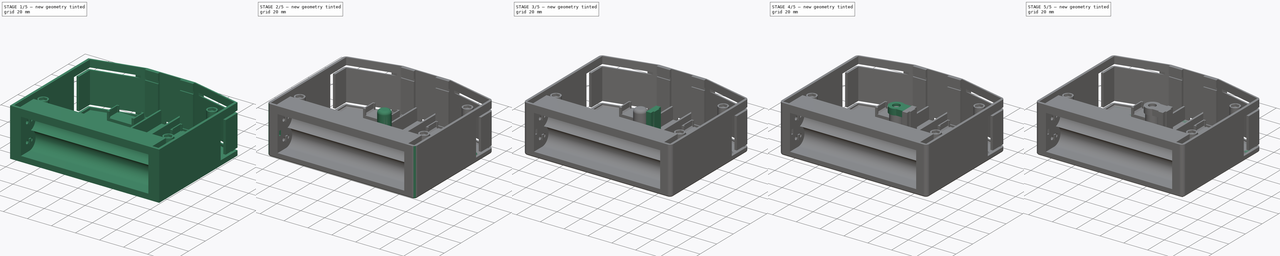
[diagram: build sequence overview — one tinted view per stage of 5, left to right]
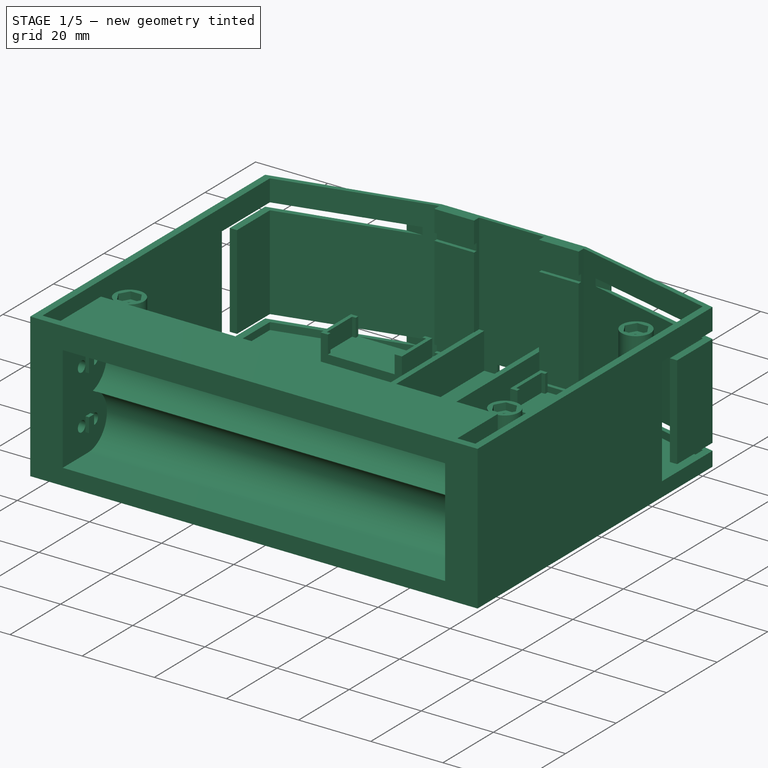
[diagram: stage 1 of 5 — iso view after this stage's code; geometry added in this stage tinted green]
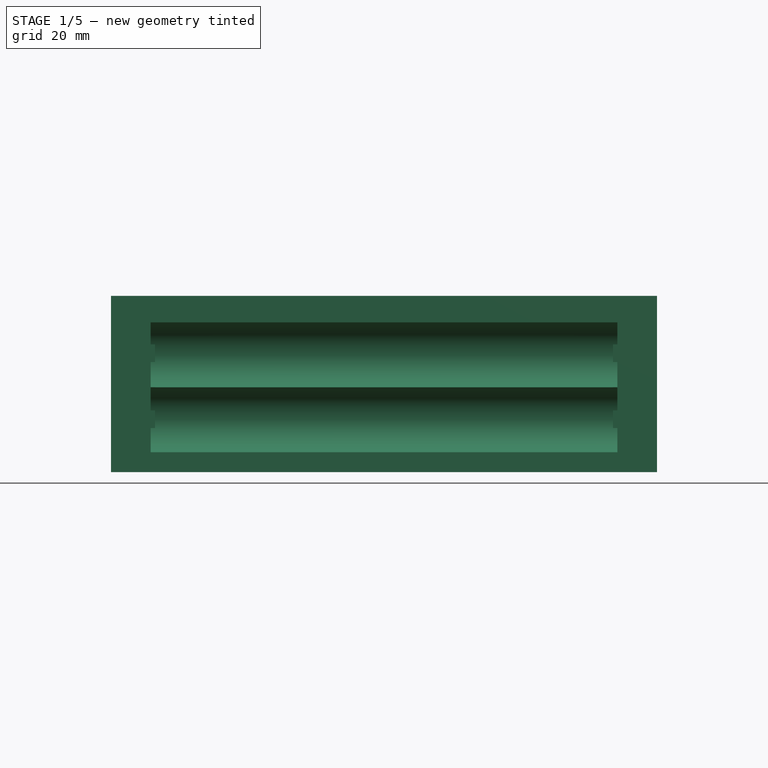
[diagram: stage 1 of 5 — front view after this stage's code; geometry added in this stage tinted green]
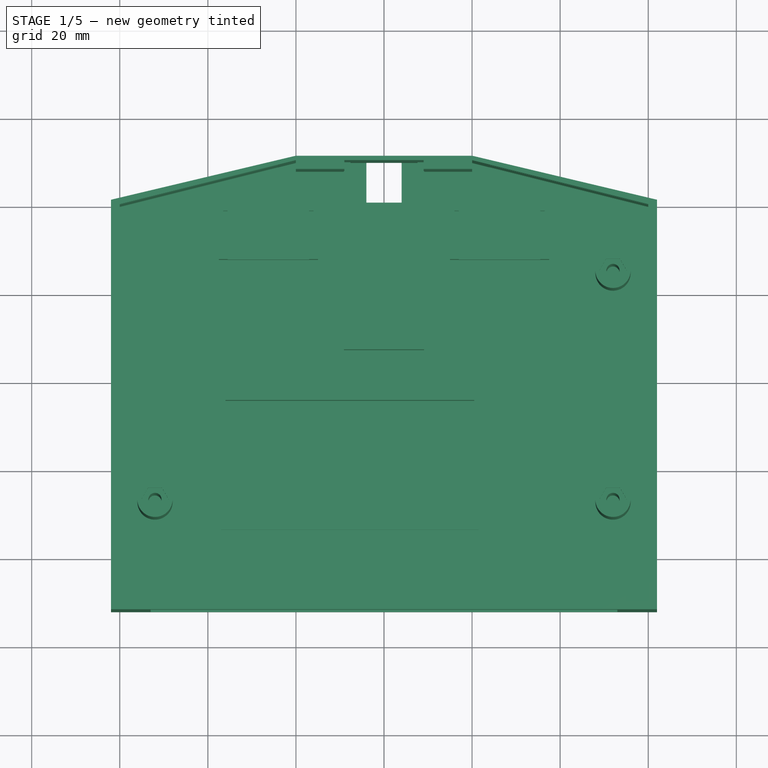
[diagram: stage 1 of 5 — top view after this stage's code; geometry added in this stage tinted green]
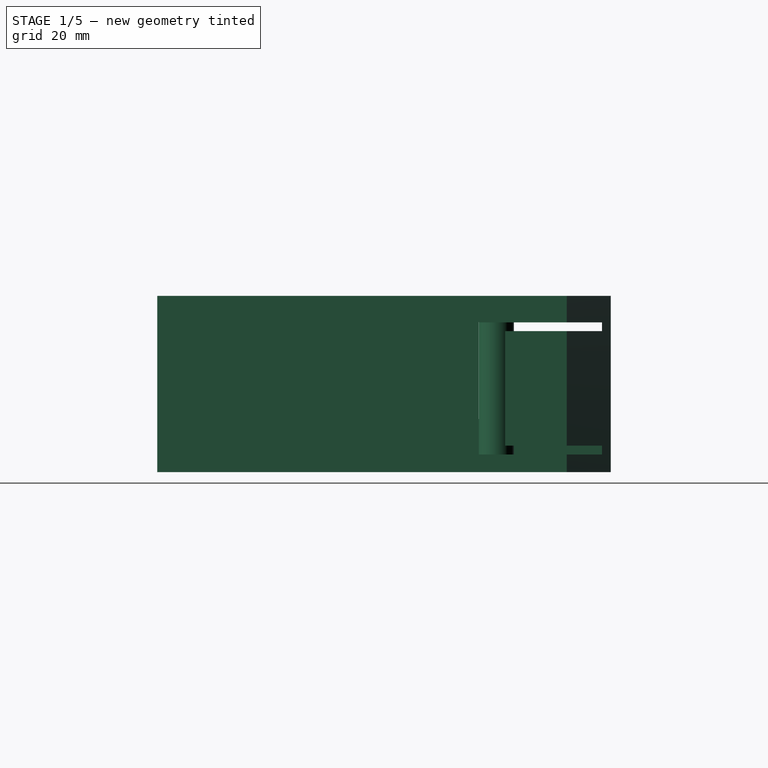
[diagram: stage 1 of 5 — right view after this stage's code; geometry added in this stage tinted green]
FCSTD DOCUMENT  (FreeCAD 0.19R24267 +99 (Git))
Label: Base
License: All rights reserved
LicenseURL: http://en.wikipedia.org/wiki/All_rights_reserved
objects: Sketcher::SketchObject×61, PartDesign::Pad×33, PartDesign::Pocket×28, PartDesign::Body×8, PartDesign::Chamfer×7, PartDesign::Fillet×5
note: 215 computed .brp shape members not serialized (recipe doc carries the construction recipe); baked Part::Feature solids carry a one-line shape summary decoded from their .brp

FEATURE [Sketcher::SketchObject] Sketch
  FullyConstrained = true
  MapMode = 5
  Support = -> [XY_Plane]
  sketch-geometry (16):
    g0: LineSegment StartX=-9 StartY=50 StartZ=0 EndX=9 EndY=50 EndZ=0
    g1: LineSegment StartX=60 StartY=40 StartZ=0 EndX=60 EndY=-50 EndZ=0
    g2: LineSegment StartX=60 StartY=-50 StartZ=0 EndX=55 EndY=-50 EndZ=0
    g3: LineSegment StartX=-60 StartY=-50 StartZ=0 EndX=-60 EndY=40 EndZ=0
    g4: LineSegment StartX=-60 StartY=40 StartZ=0 EndX=-20 EndY=50 EndZ=0
    g5: LineSegment StartX=20 StartY=50 StartZ=0 EndX=60 EndY=40 EndZ=0
    g6: LineSegment StartX=55 StartY=-50 StartZ=0 EndX=55 EndY=-34 EndZ=0
    g7: LineSegment StartX=55 StartY=-34 StartZ=0 EndX=-55 EndY=-34 EndZ=0
    g8: LineSegment StartX=-55 StartY=-34 StartZ=0 EndX=-55 EndY=-50 EndZ=0
    g9: LineSegment StartX=-55 StartY=-50 StartZ=0 EndX=-60 EndY=-50 EndZ=0
    g10: LineSegment StartX=-20 StartY=50 StartZ=0 EndX=-20 EndY=48 EndZ=0
    g11: LineSegment StartX=-20 StartY=48 StartZ=0 EndX=-9 EndY=48 EndZ=0
    g12: LineSegment StartX=-9 StartY=48 StartZ=0 EndX=-9 EndY=50 EndZ=0
    g13: LineSegment StartX=9 StartY=50 StartZ=0 EndX=9 EndY=48 EndZ=0
    g14: LineSegment StartX=9 StartY=48 StartZ=0 EndX=20 EndY=48 EndZ=0
    g15: LineSegment StartX=20 StartY=48 StartZ=0 EndX=20 EndY=50 EndZ=0
  constraints (47):
    c: Coincident(g1,g2)
    c: Coincident(g9,g3)
    c: Horizontal(g0)
    c: Horizontal(g2)
    c: Vertical(g1)
    c: Vertical(g3)
    c: DistanceX(g4,g-1) = 20
    c: DistanceX(g-1,g5) = 20
    c: DistanceX(g9,g2) = 120
    c: DistanceY(g-1,g4) = 40
    c: DistanceY(g-1,g5) = 40
    c: Coincident(g1,g5)
    c: Coincident(g3,g4)
    c: DistanceY(g9,g-1) = 50
    c: DistanceY(g-1,g4) = 50
    c: DistanceX(g9,g-1) = 60
    c: Coincident(g6,g7)
    c: Coincident(g7,g8)
    c: Horizontal(g7)
    c: Vertical(g6)
    c: Vertical(g8)
    c: DistanceX(g7,g7) = 110
    c: DistanceX(g7,g-1) = 55
    c: DistanceY(g9,g7) = 16
    c: Coincident(g2,g6)
    c: Coincident(g9,g8)
    c: Tangent(g2,g9)
    c: Coincident(g4,g10)
    c: Vertical(g10)
    c: Coincident(g10,g11)
    c: Horizontal(g11)
    c: Coincident(g11,g12)
    c: Vertical(g12)
    c: Vertical(g13)
    c: Coincident(g13,g14)
    c: Horizontal(g14)
    c: Coincident(g14,g15)
    c: Coincident(g15,g5)
    c: Vertical(g15)
    c: Coincident(g0,g12)
    c: Coincident(g0,g13)
    c: DistanceY(g13,g11) = 0
    c: DistanceY(g12,g12) = 2
    c: DistanceY(g10,g4) = 2
    c: DistanceX(g11,g11) = 11
    c: DistanceX(g14,g14) = 11
    c: DistanceY(g15,g15) = 2
FEATURE [Sketcher::SketchObject] Sketch002  label="JoyStickHolder"
  FullyConstrained = true
  MapMode = 5
  Support = -> [XY_Plane]
  sketch-geometry (8):
    g0: LineSegment StartX=-55.1 StartY=14.1 StartZ=0 EndX=-15 EndY=14.1 EndZ=0
    g1: LineSegment StartX=-15 StartY=14.1 StartZ=0 EndX=-15 EndY=8 EndZ=0
    g2: LineSegment StartX=-15 StartY=8 StartZ=0 EndX=-55.1 EndY=8 EndZ=0
    g3: LineSegment StartX=-55.1 StartY=8 StartZ=0 EndX=-55.1 EndY=14.1 EndZ=0
    g4: LineSegment StartX=35 StartY=23.1 StartZ=0 EndX=41.1 EndY=23.1 EndZ=0
    g5: LineSegment StartX=41.1 StartY=23.1 StartZ=0 EndX=41.1 EndY=-17 EndZ=0
    g6: LineSegment StartX=41.1 StartY=-17 StartZ=0 EndX=35 EndY=-17 EndZ=0
    g7: LineSegment StartX=35 StartY=-17 StartZ=0 EndX=35 EndY=23.1 EndZ=0
  constraints (24):
    c: Coincident(g0,g1)
    c: Coincident(g1,g2)
    c: Coincident(g2,g3)
    c: Coincident(g3,g0)
    c: Horizontal(g0)
    c: Horizontal(g2)
    c: Vertical(g1)
    c: Vertical(g3)
    c: Coincident(g4,g5)
    c: Coincident(g5,g6)
    c: Coincident(g6,g7)
    c: Coincident(g7,g4)
    c: Horizontal(g4)
    c: Horizontal(g6)
    c: Vertical(g5)
    c: Vertical(g7)
    c: DistanceY(g1,g1) = 6.1
    c: DistanceY(g5,g5) = 40.1
    c: DistanceX(g6,g6) = 6.1
    c: DistanceX(g0,g0) = 40.1
    c: DistanceX(g1,g-1) = 15
    c: DistanceY(g-1,g1) = 8
    c: DistanceX(g-1,g6) = 35
    c: DistanceY(g0,g4) = 9
FEATURE [Sketcher::SketchObject] Sketch003  label="ESPSlot"
  FullyConstrained = true
  MapMode = 5
  Support = -> [XY_Plane]
  sketch-geometry (8):
    g0: LineSegment StartX=-36 StartY=-4 StartZ=0 EndX=20.5 EndY=-4 EndZ=0
    g1: LineSegment StartX=20.5 StartY=-4 StartZ=0 EndX=20.5 EndY=-32.5 EndZ=0
    g2: LineSegment StartX=20.5 StartY=-32.5 StartZ=0 EndX=-36 EndY=-32.5 EndZ=0
    g3: LineSegment StartX=-36 StartY=-32.5 StartZ=0 EndX=-36 EndY=-4 EndZ=0
    g4: LineSegment StartX=-37 StartY=-3 StartZ=0 EndX=21.5 EndY=-3 EndZ=0
    g5: LineSegment StartX=21.5 StartY=-3 StartZ=0 EndX=21.5 EndY=-33.5 EndZ=0
    g6: LineSegment StartX=21.5 StartY=-33.5 StartZ=0 EndX=-37 EndY=-33.5 EndZ=0
    g7: LineSegment StartX=-37 StartY=-33.5 StartZ=0 EndX=-37 EndY=-3 EndZ=0
  constraints (24):
    c: Coincident(g0,g1)
    c: Coincident(g1,g2)
    c: Coincident(g2,g3)
    c: Coincident(g3,g0)
    c: Horizontal(g0)
    c: Horizontal(g2)
    c: Vertical(g1)
    c: Vertical(g3)
    c: DistanceY(g1,g1) = 28.5
    c: DistanceX(g0,g0) = 56.5
    c: DistanceY(g0,g-1) = 4
    c: DistanceX(g0,g-1) = 36
    c: Coincident(g4,g5)
    c: Coincident(g5,g6)
    c: Coincident(g6,g7)
    c: Coincident(g7,g4)
    c: Horizontal(g4)
    c: Horizontal(g6)
    c: Vertical(g5)
    c: Vertical(g7)
    c: DistanceY(g0,g4) = 1
    c: DistanceY(g6,g2) = 1
    c: DistanceX(g4,g0) = 1
    c: DistanceX(g0,g4) = 1
FEATURE [Sketcher::SketchObject] Sketch004  label="BatteryHolder"
  FullyConstrained = true
  MapMode = 5
  Placement = pos=(0,0,0) rot=(0.57735,0.57735,0.57735;2.0944rad)
  Support = -> [YZ_Plane]
  sketch-geometry (5):
    g0: ArcOfCircle CenterX=-42 CenterY=24.5 CenterZ=0 NormalX=0 NormalY=0 NormalZ=1 AngleXU=0 Radius=7.5 StartAngle=4.97131 EndAngle=7.85398
    g1: ArcOfCircle CenterX=-42 CenterY=10 CenterZ=0 NormalX=0 NormalY=0 NormalZ=1 AngleXU=0 Radius=7.5 StartAngle=4.71239 EndAngle=7.59506
    g2: LineSegment StartX=-42 StartY=32 StartZ=0 EndX=-57 EndY=32 EndZ=0
    g3: LineSegment StartX=-57 StartY=32 StartZ=0 EndX=-57 EndY=2.5 EndZ=0
    g4: LineSegment StartX=-57 StartY=2.5 StartZ=0 EndX=-42 EndY=2.5 EndZ=0
  constraints (17):
    c: DistanceX(g1,g0) = 0
    c: Radius(g0) = 7.5
    c: Radius(g1) = 7.5
    c: DistanceY(g1,g0) = 14.5
    c: DistanceX(g1,g-1) = 42
    c: DistanceY(g-1,g1) = 10
    c: Coincident(g2,g3)
    c: Coincident(g3,g4)
    c: Horizontal(g2)
    c: Horizontal(g4)
    c: Vertical(g3)
    c: DistanceX(g2,g2) = 15
    c: DistanceX(g0,g2) = 0
    c: Coincident(g0,g2)
    c: Coincident(g1,g4)
    c: Coincident(g0,g1)
    c: DistanceX(g4,g4) = 15
FEATURE [Sketcher::SketchObject] Sketch005  label="NRF"
  FullyConstrained = true
  MapMode = 5
  Support = -> [XY_Plane]
  sketch-geometry (8):
    g0: LineSegment StartX=-9.1 StartY=50 StartZ=0 EndX=-7.6 EndY=50 EndZ=0
    g1: LineSegment StartX=9.1 StartY=50 StartZ=0 EndX=9.1 EndY=7.5 EndZ=0
    g2: LineSegment StartX=9.1 StartY=7.5 StartZ=0 EndX=-9.1 EndY=7.5 EndZ=0
    g3: LineSegment StartX=-9.1 StartY=7.5 StartZ=0 EndX=-9.1 EndY=50 EndZ=0
    g4: LineSegment StartX=7.6 StartY=50 StartZ=0 EndX=7.6 EndY=9 EndZ=0
    g5: LineSegment StartX=7.6 StartY=9 StartZ=0 EndX=-7.6 EndY=9 EndZ=0
    g6: LineSegment StartX=-7.6 StartY=9 StartZ=0 EndX=-7.6 EndY=50 EndZ=0
    g7: LineSegment StartX=7.6 StartY=50 StartZ=0 EndX=9.1 EndY=50 EndZ=0
  constraints (23):
    c: Coincident(g7,g1)
    c: Coincident(g1,g2)
    c: Coincident(g2,g3)
    c: Coincident(g3,g0)
    c: Horizontal(g0)
    c: Horizontal(g2)
    c: Vertical(g1)
    c: Vertical(g3)
    c: DistanceY(g1,g1) = 42.5
    c: DistanceY(g-1,g1) = 7.5
    c: Coincident(g4,g5)
    c: Coincident(g5,g6)
    c: Horizontal(g5)
    c: Vertical(g4)
    c: Vertical(g6)
    c: Tangent(g0,g7)
    c: Coincident(g6,g0)
    c: Coincident(g4,g7)
    c: DistanceX(g2,g5) = 1.5
    c: DistanceX(g4,g1) = 1.5
    c: DistanceX(g5,g-1) = 7.6
    c: DistanceX(g5,g5) = 15.2
    c: DistanceY(g5,g0) = 41
FEATURE [Sketcher::SketchObject] Sketch006
  AttachmentOffset = pos=(0,0,-2) rot=(0,0,1;0rad)
  FullyConstrained = true
  MapMode = 5
  Placement = pos=(0,0,-2) rot=(0,0,1;0rad)
  Support = -> [XY_Plane]
  sketch-geometry (6):
    g0: LineSegment StartX=-20 StartY=51 StartZ=0 EndX=20 EndY=51 EndZ=0
    g1: LineSegment StartX=62 StartY=41 StartZ=0 EndX=62 EndY=-52 EndZ=0
    g2: LineSegment StartX=62 StartY=-52 StartZ=0 EndX=-62 EndY=-52 EndZ=0
    g3: LineSegment StartX=-62 StartY=-52 StartZ=0 EndX=-62 EndY=41 EndZ=0
    g4: LineSegment StartX=-62 StartY=41 StartZ=0 EndX=-20 EndY=51 EndZ=0
    g5: LineSegment StartX=20 StartY=51 StartZ=0 EndX=62 EndY=41 EndZ=0
  constraints (18):
    c: Coincident(g1,g2)
    c: Coincident(g2,g3)
    c: Horizontal(g0)
    c: Horizontal(g2)
    c: Vertical(g1)
    c: Vertical(g3)
    c: Coincident(g0,g4)
    c: Coincident(g3,g4)
    c: Coincident(g0,g5)
    c: Coincident(g1,g5)
    c: DistanceX(g3,g-1) = 62
    c: DistanceX(g-1,g1) = 62
    c: DistanceY(g2,g-1) = 52
    c: DistanceY(g-1,g0) = 51
    c: DistanceY(g-1,g3) = 41
    c: DistanceY(g-1,g1) = 41
    c: DistanceX(g0,g-1) = 20
    c: DistanceX(g0,g0) = 40
FEATURE [Sketcher::SketchObject] Sketch007  label="ButtonHolderWall"
  FullyConstrained = true
  MapMode = 5
  Support = -> [XY_Plane]
  sketch-geometry (32):
    g0: LineSegment StartX=-37.5 StartY=40 StartZ=0 EndX=-35.5 EndY=40 EndZ=0
    g1: LineSegment StartX=-15 StartY=40 StartZ=0 EndX=-15 EndY=28 EndZ=0
    g2: LineSegment StartX=-15 StartY=28 StartZ=0 EndX=-17 EndY=28 EndZ=0
    g3: LineSegment StartX=-37.5 StartY=28 StartZ=0 EndX=-37.5 EndY=40 EndZ=0
    g4: LineSegment StartX=-36.5 StartY=39 StartZ=0 EndX=-35.5 EndY=39 EndZ=0
    g5: LineSegment StartX=-16 StartY=39 StartZ=0 EndX=-16 EndY=29 EndZ=0
    g6: LineSegment StartX=-16 StartY=29 StartZ=0 EndX=-17 EndY=29 EndZ=0
    g7: LineSegment StartX=-36.5 StartY=29 StartZ=0 EndX=-36.5 EndY=39 EndZ=0
    g8: LineSegment StartX=-17 StartY=40 StartZ=0 EndX=-17 EndY=39 EndZ=0
    g9: LineSegment StartX=-35.5 StartY=28 StartZ=0 EndX=-35.5 EndY=29 EndZ=0
    g10: LineSegment StartX=-17 StartY=29 StartZ=0 EndX=-17 EndY=28 EndZ=0
    g11: LineSegment StartX=-35.5 StartY=39 StartZ=0 EndX=-35.5 EndY=40 EndZ=0
    g12: LineSegment StartX=-17 StartY=39 StartZ=0 EndX=-16 EndY=39 EndZ=0
    g13: LineSegment StartX=-17 StartY=40 StartZ=0 EndX=-15 EndY=40 EndZ=0
    g14: LineSegment StartX=-35.5 StartY=29 StartZ=0 EndX=-36.5 EndY=29 EndZ=0
    g15: LineSegment StartX=-35.5 StartY=28 StartZ=0 EndX=-37.5 EndY=28 EndZ=0
    g16: LineSegment StartX=15 StartY=40 StartZ=0 EndX=17 EndY=40 EndZ=0
    g17: LineSegment StartX=37.5 StartY=40 StartZ=0 EndX=37.5 EndY=28 EndZ=0
    g18: LineSegment StartX=37.5 StartY=28 StartZ=0 EndX=35.5 EndY=28 EndZ=0
    g19: LineSegment StartX=15 StartY=28 StartZ=0 EndX=15 EndY=40 EndZ=0
    g20: LineSegment StartX=35.5 StartY=40 StartZ=0 EndX=35.5 EndY=39 EndZ=0
    g21: LineSegment StartX=17 StartY=28 StartZ=0 EndX=17 EndY=29 EndZ=0
    g22: LineSegment StartX=16 StartY=39 StartZ=0 EndX=17 EndY=39 EndZ=0
    g23: LineSegment StartX=36.5 StartY=39 StartZ=0 EndX=36.5 EndY=29 EndZ=0
    g24: LineSegment StartX=36.5 StartY=29 StartZ=0 EndX=35.5 EndY=29 EndZ=0
    g25: LineSegment StartX=16 StartY=29 StartZ=0 EndX=16 EndY=39 EndZ=0
    g26: LineSegment StartX=17 StartY=39 StartZ=0 EndX=17 EndY=40 EndZ=0
    g27: LineSegment StartX=35.5 StartY=39 StartZ=0 EndX=36.5 EndY=39 EndZ=0
    g28: LineSegment StartX=35.5 StartY=40 StartZ=0 EndX=37.5 EndY=40 EndZ=0
    g29: LineSegment StartX=17 StartY=29 StartZ=0 EndX=16 EndY=29 EndZ=0
    g30: LineSegment StartX=17 StartY=28 StartZ=0 EndX=15 EndY=28 EndZ=0
    g31: LineSegment StartX=35.5 StartY=29 StartZ=0 EndX=35.5 EndY=28 EndZ=0
  constraints (84):
    c: Coincident(g13,g1)
    c: Coincident(g1,g2)
    c: Coincident(g15,g3)
    c: Coincident(g3,g0)
    c: Horizontal(g0)
    c: Horizontal(g2)
    c: Vertical(g1)
    c: Vertical(g3)
    c: DistanceX(g15,g2) = 22.5
    c: DistanceX(g1,g-1) = 15
    c: Coincident(g12,g5)
    c: Coincident(g5,g6)
    c: Coincident(g14,g7)
    c: Coincident(g7,g4)
    c: Horizontal(g4)
    c: Horizontal(g6)
    c: Vertical(g5)
    c: Vertical(g7)
    c: Vertical(g8)
    c: Vertical(g9)
    c: Tangent(g8,g10)
    c: Tangent(g9,g11)
    c: Coincident(g4,g11)
    c: Coincident(g12,g8)
    c: Tangent(g4,g12)
    c: Tangent(g0,g13)
    c: Coincident(g11,g0)
    c: Coincident(g8,g13)
    c: Coincident(g6,g10)
    c: Coincident(g14,g9)
    c: Tangent(g6,g14)
    c: Tangent(g2,g15)
    c: Coincident(g9,g15)
    c: Coincident(g10,g2)
    c: DistanceX(g4,g5) = 20.5
    c: DistanceY(g5,g5) = 10
    c: DistanceY(g1,g1) = 12
    c: DistanceY(g8,g8) = 1
    c: DistanceX(g13,g13) = 2
    c: DistanceX(g0,g0) = 2
    c: DistanceX(g0,g4) = 1
    c: DistanceY(g-1,g1) = 28
    c: Coincident(g28,g17)
    c: Coincident(g17,g18)
    c: Coincident(g30,g19)
    c: Coincident(g19,g16)
    c: Horizontal(g16)
    c: Horizontal(g18)
    c: Vertical(g17)
    c: Vertical(g19)
    c: Vertical(g20)
    c: Vertical(g21)
    c: Coincident(g27,g23)
    c: Coincident(g23,g24)
    c: Coincident(g29,g25)
    c: Coincident(g25,g22)
    c: Horizontal(g22)
    c: Horizontal(g24)
    c: Vertical(g23)
    c: Vertical(g25)
    c: Tangent(g21,g26)
    c: Coincident(g22,g26)
    c: Tangent(g22,g27)
    c: Tangent(g16,g28)
    c: Coincident(g29,g21)
    c: Tangent(g24,g29)
    c: Tangent(g18,g30)
    c: Coincident(g21,g30)
    c: Coincident(g31,g18)
    c: Coincident(g26,g16)
    c: Coincident(g20,g28)
    c: Coincident(g20,g27)
    c: Coincident(g31,g24)
    c: Tangent(g20,g31)
    c: DistanceY(g19,g19) = 12
    c: DistanceY(g25,g25) = 10
    c: DistanceY(g26,g26) = 1
    c: DistanceX(g16,g16) = 2
    c: DistanceX(g28,g28) = 2
    c: DistanceX(g22,g23) = 20.5
    c: DistanceX(g19,g17) = 22.5
    c: DistanceX(g16,g22) = 1
    c: DistanceY(g1,g19) = 0
    c: DistanceX(g1,g19) = 30
FEATURE [Sketcher::SketchObject] Sketch008  label="AntennaHole"
  FullyConstrained = true
  MapMode = 5
  Support = -> [XY_Plane]
  sketch-geometry (4):
    g0: LineSegment StartX=-4 StartY=51 StartZ=0 EndX=4 EndY=51 EndZ=0
    g1: LineSegment StartX=4 StartY=51 StartZ=0 EndX=4 EndY=41 EndZ=0
    g2: LineSegment StartX=4 StartY=41 StartZ=0 EndX=-4 EndY=41 EndZ=0
    g3: LineSegment StartX=-4 StartY=41 StartZ=0 EndX=-4 EndY=51 EndZ=0
  constraints (12):
    c: Coincident(g0,g1)
    c: Coincident(g1,g2)
    c: Coincident(g2,g3)
    c: Coincident(g3,g0)
    c: Horizontal(g0)
    c: Horizontal(g2)
    c: Vertical(g1)
    c: Vertical(g3)
    c: DistanceX(g2,g2) = 8
    c: DistanceY(g1,g1) = 10
    c: DistanceY(g-1,g0) = 51
    c: DistanceX(g2,g-1) = 4
FEATURE [Sketcher::SketchObject] Sketch009  label="ButtonMoverHole"
  FullyConstrained = true
  MapMode = 5
  Placement = pos=(0,0,0) rot=(0.57735,0.57735,0.57735;2.0944rad)
  Support = -> [YZ_Plane]
  sketch-geometry (8):
    g0: LineSegment StartX=49 StartY=2 StartZ=0 EndX=21 EndY=2 EndZ=0
    g1: LineSegment StartX=21 StartY=2 StartZ=0 EndX=21 EndY=32 EndZ=0
    g2: LineSegment StartX=21 StartY=32 StartZ=0 EndX=49 EndY=32 EndZ=0
    g3: LineSegment StartX=49 StartY=32 StartZ=0 EndX=49 EndY=30 EndZ=0
    g4: LineSegment StartX=49 StartY=30 StartZ=0 EndX=27 EndY=30 EndZ=0
    g5: LineSegment StartX=27 StartY=30 StartZ=0 EndX=27 EndY=4 EndZ=0
    g6: LineSegment StartX=27 StartY=4 StartZ=0 EndX=49 EndY=4 EndZ=0
    g7: LineSegment StartX=49 StartY=4 StartZ=0 EndX=49 EndY=2 EndZ=0
  constraints (23):
    c: Coincident(g0,g1)
    c: Coincident(g1,g2)
    c: Coincident(g2,g3)
    c: Coincident(g7,g0)
    c: Horizontal(g0)
    c: Horizontal(g2)
    c: Vertical(g1)
    c: Vertical(g3)
    c: Coincident(g4,g5)
    c: Coincident(g5,g6)
    c: Horizontal(g4)
    c: Horizontal(g6)
    c: Vertical(g5)
    c: Tangent(g3,g7)
    c: Coincident(g4,g3)
    c: Coincident(g6,g7)
    c: DistanceY(g7,g7) = 2
    c: DistanceY(g3,g3) = 2
    c: DistanceY(g-1,g0) = 2
    c: DistanceX(g1,g4) = 6
    c: DistanceX(g-1,g0) = 21
    c: DistanceX(g0,g0) = 28
    c: DistanceY(g1,g1) = 30
FEATURE [Sketcher::SketchObject] Sketch010  label="BoltHoles"
  FullyConstrained = true
  MapMode = 5
  Support = -> [XY_Plane]
  sketch-geometry (6):
    g0: Circle CenterX=52 CenterY=-27 CenterZ=0 NormalX=0 NormalY=0 NormalZ=1 AngleXU=0 Radius=4
    g1: Circle CenterX=-52 CenterY=-27 CenterZ=0 NormalX=0 NormalY=0 NormalZ=1 AngleXU=0 Radius=4
    g2: Circle CenterX=52 CenterY=25 CenterZ=0 NormalX=0 NormalY=0 NormalZ=1 AngleXU=0 Radius=4
    g3: Circle CenterX=-52 CenterY=-27 CenterZ=0 NormalX=0 NormalY=0 NormalZ=1 AngleXU=0 Radius=1.5
    g4: Circle CenterX=52 CenterY=-27 CenterZ=0 NormalX=0 NormalY=0 NormalZ=1 AngleXU=0 Radius=1.5
    g5: Circle CenterX=52 CenterY=25 CenterZ=0 NormalX=0 NormalY=0 NormalZ=1 AngleXU=0 Radius=1.5
  constraints (15):
    c: DistanceY(g1,g0) = 0
    c: DistanceX(g2,g0) = 0
    c: Radius(g1) = 4
    c: Radius(g0) = 4
    c: Radius(g2) = 4
    c: DistanceX(g1,g-1) = 52
    c: DistanceX(g-1,g0) = 52
    c: DistanceY(g1,g-1) = 27
    c: DistanceY(g-1,g2) = 25
    c: Coincident(g3,g1)
    c: Coincident(g4,g0)
    c: Coincident(g5,g2)
    c: Radius(g3) = 1.5
    c: Radius(g4) = 1.5
    c: Radius(g5) = 1.5
FEATURE [PartDesign::Pad] Pad
  Direction = (1,1,1)
  Length = 40
  Length2 = 100
  Profile = -> Sketch006
  Type = 0
FEATURE [PartDesign::Pocket] Pocket
  BaseFeature = -> Pad
  Length = 40
  Length2 = 100
  Profile = -> Sketch
  Reversed = true
  Type = 0
FEATURE [PartDesign::Pocket] Pocket001
  BaseFeature = -> Pocket
  Length = 106
  Length2 = 100
  Midplane = true
  Profile = -> Sketch004
  Type = 0
FEATURE [PartDesign::Pocket] Pocket002
  BaseFeature = -> Pocket001
  Length = 500
  Length2 = 100
  Midplane = true
  Profile = -> Sketch009
  Type = 0
FEATURE [PartDesign::Pad] Pad001
  BaseFeature = -> Pocket002
  Direction = (1,1,1)
  Length = 10
  Length2 = 100
  Profile = -> Sketch005
  Type = 0
FEATURE [PartDesign::Pocket] Pocket003
  BaseFeature = -> Pad001
  Length = 1
  Length2 = 100
  Profile = -> Sketch002
  Type = 0
FEATURE [PartDesign::Pad] Pad002
  BaseFeature = -> Pocket003
  Direction = (1,1,1)
  Length = 10
  Length2 = 100
  Profile = -> Sketch003
  Type = 0
FEATURE [PartDesign::Pocket] Pocket004
  BaseFeature = -> Pad002
  Length = 5
  Length2 = 100
  Midplane = true
  Profile = -> Sketch008
  Type = 0
FEATURE [Sketcher::SketchObject] Sketch011
  FullyConstrained = true
  MapMode = 5
  Support = -> [XY_Plane]
  sketch-geometry (8):
    g0: LineSegment StartX=-37.5 StartY=40 StartZ=0 EndX=-15 EndY=40 EndZ=0
    g1: LineSegment StartX=-15 StartY=40 StartZ=0 EndX=-15 EndY=28 EndZ=0
    g2: LineSegment StartX=-15 StartY=28 StartZ=0 EndX=-37.5 EndY=28 EndZ=0
    g3: LineSegment StartX=-37.5 StartY=28 StartZ=0 EndX=-37.5 EndY=40 EndZ=0
    g4: LineSegment StartX=15 StartY=40 StartZ=0 EndX=37.5 EndY=40 EndZ=0
    g5: LineSegment StartX=37.5 StartY=40 StartZ=0 EndX=37.5 EndY=28 EndZ=0
    g6: LineSegment StartX=37.5 StartY=28 StartZ=0 EndX=15 EndY=28 EndZ=0
    g7: LineSegment StartX=15 StartY=28 StartZ=0 EndX=15 EndY=40 EndZ=0
  constraints (24):
    c: Coincident(g0,g1)
    c: Coincident(g1,g2)
    c: Coincident(g2,g3)
    c: Coincident(g3,g0)
    c: Horizontal(g0)
    c: Horizontal(g2)
    c: Vertical(g1)
    c: Vertical(g3)
    c: Coincident(g4,g5)
    c: Coincident(g5,g6)
    c: Coincident(g6,g7)
    c: Coincident(g7,g4)
    c: Horizontal(g4)
    c: Horizontal(g6)
    c: Vertical(g5)
    c: Vertical(g7)
    c: DistanceX(g0,g0) = 22.5
    c: DistanceY(g3,g3) = 12
    c: DistanceY(g6,g1) = 0
    c: DistanceY(g0,g4) = 0
    c: DistanceY(g-1,g1) = 28
    c: DistanceX(g1,g-1) = 15
    c: DistanceX(g1,g6) = 30
    c: DistanceX(g4,g4) = 22.5
FEATURE [PartDesign::Pad] Pad003
  BaseFeature = -> Pocket004
  Direction = (1,1,1)
  Length = 5
  Length2 = 100
  Profile = -> Sketch011
  Type = 0
FEATURE [PartDesign::Pad] Pad004
  BaseFeature = -> Pad003
  Direction = (1,1,1)
  Length = 10
  Length2 = 100
  Profile = -> Sketch007
  Type = 0
FEATURE [Sketcher::SketchObject] Sketch012  label="Nutholes"
  AttachmentOffset = pos=(0,0,38) rot=(0,0,1;0rad)
  FullyConstrained = true
  MapMode = 5
  Placement = pos=(0,0,38) rot=(0,0,1;0rad)
  Support = -> [XY_Plane]
  sketch-geometry (21):
    g0: LineSegment StartX=-48.9 StartY=-27 StartZ=0 EndX=-50.45 EndY=-24.3153 EndZ=0
    g1: LineSegment StartX=-50.45 StartY=-24.3153 StartZ=0 EndX=-53.55 EndY=-24.3153 EndZ=0
    g2: LineSegment StartX=-53.55 StartY=-24.3153 StartZ=0 EndX=-55.1 EndY=-27 EndZ=0
    g3: LineSegment StartX=-55.1 StartY=-27 StartZ=0 EndX=-53.55 EndY=-29.6847 EndZ=0
    g4: LineSegment StartX=-53.55 StartY=-29.6847 StartZ=0 EndX=-50.45 EndY=-29.6847 EndZ=0
    g5: LineSegment StartX=-50.45 StartY=-29.6847 StartZ=0 EndX=-48.9 EndY=-27 EndZ=0
    g6: Circle CenterX=-52 CenterY=-27 CenterZ=0 NormalX=0 NormalY=0 NormalZ=1 AngleXU=0 Radius=3.1
    g7: LineSegment StartX=55.1 StartY=-27 StartZ=0 EndX=53.55 EndY=-24.3153 EndZ=0
    g8: LineSegment StartX=53.55 StartY=-24.3153 StartZ=0 EndX=50.45 EndY=-24.3153 EndZ=0
    g9: LineSegment StartX=50.45 StartY=-24.3153 StartZ=0 EndX=48.9 EndY=-27 EndZ=0
    g10: LineSegment StartX=48.9 StartY=-27 StartZ=0 EndX=50.45 EndY=-29.6847 EndZ=0
    g11: LineSegment StartX=50.45 StartY=-29.6847 StartZ=0 EndX=53.55 EndY=-29.6847 EndZ=0
    g12: LineSegment StartX=53.55 StartY=-29.6847 StartZ=0 EndX=55.1 EndY=-27 EndZ=0
    g13: Circle CenterX=52 CenterY=-27 CenterZ=0 NormalX=0 NormalY=0 NormalZ=1 AngleXU=0 Radius=3.1
    g14: LineSegment StartX=55.1 StartY=25 StartZ=0 EndX=53.55 EndY=27.6847 EndZ=0
    g15: LineSegment StartX=53.55 StartY=27.6847 StartZ=0 EndX=50.45 EndY=27.6847 EndZ=0
    g16: LineSegment StartX=50.45 StartY=27.6847 StartZ=0 EndX=48.9 EndY=25 EndZ=0
    g17: LineSegment StartX=48.9 StartY=25 StartZ=0 EndX=50.45 EndY=22.3153 EndZ=0
    g18: LineSegment StartX=50.45 StartY=22.3153 StartZ=0 EndX=53.55 EndY=22.3153 EndZ=0
    g19: LineSegment StartX=53.55 StartY=22.3153 StartZ=0 EndX=55.1 EndY=25 EndZ=0
    g20: Circle CenterX=52 CenterY=25 CenterZ=0 NormalX=0 NormalY=0 NormalZ=1 AngleXU=0 Radius=3.1
  constraints (51):
    c: Coincident(g0,g1)
    c: Coincident(g1,g2)
    c: Coincident(g2,g3)
    c: Coincident(g3,g4)
    c: Coincident(g4,g5)
    c: Coincident(g5,g0)
    c: Equal(g0, g1-g5) x5
    c: PointOnObject(g0,g6)
    c: PointOnObject(g1,g6)
    c: PointOnObject(g2,g6)
    c: PointOnObject(g3,g6)
    c: PointOnObject(g4,g6)
    c: PointOnObject(g5,g6)
    c: Coincident(g7,g8)
    c: Coincident(g8,g9)
    c: Coincident(g9,g10)
    c: Coincident(g10,g11)
    c: Coincident(g11,g12)
    c: Coincident(g12,g7)
    c: Equal(g7, g8-g12) x5
    c: PointOnObject(g7,g13)
    c: PointOnObject(g8,g13)
    c: PointOnObject(g9,g13)
    c: PointOnObject(g10,g13)
    c: PointOnObject(g11,g13)
    c: PointOnObject(g12,g13)
    c: Coincident(g14,g15)
    c: Coincident(g15,g16)
    c: Coincident(g16,g17)
    c: Coincident(g17,g18)
    c: Coincident(g18,g19)
    c: Coincident(g19,g14)
    c: Equal(g14, g15-g19) x5
    c: PointOnObject(g14,g20)
    c: PointOnObject(g15,g20)
    c: PointOnObject(g16,g20)
    c: PointOnObject(g17,g20)
    c: PointOnObject(g18,g20)
    c: PointOnObject(g19,g20)
    c: DistanceY(g13,g6) = 0
    c: DistanceX(g20,g13) = 0
    c: DistanceX(g6,g-1) = 52
    c: DistanceX(g-1,g13) = 52
    c: Radius(g6) = 3.1
    c: Radius(g13) = 3.1
    c: Radius(g20) = 3.1
    c: DistanceY(g0,g6) = 0
    c: DistanceY(g13,g7) = 0
    c: DistanceY(g20,g14) = 0
    c: DistanceY(g-1,g20) = 25
    c: DistanceY(g6,g-1) = 27
FEATURE [PartDesign::Pad] Pad005
  BaseFeature = -> Pad004
  Direction = (1,1,1)
  Length = 36
  Length2 = 100
  Profile = -> Sketch010
  Type = 0
FEATURE [PartDesign::Pocket] Pocket005
  BaseFeature = -> Pad005
  Length = 4
  Length2 = 100
  Profile = -> Sketch012
  Type = 0
FEATURE [Sketcher::SketchObject] Sketch013  label="WireHoles"
  FullyConstrained = true
  MapMode = 5
  Placement = pos=(0,0,0) rot=(0.57735,0.57735,0.57735;2.0944rad)
  Support = -> [YZ_Plane]
  sketch-geometry (4):
    g0: Circle CenterX=-44.5 CenterY=25 CenterZ=0 NormalX=0 NormalY=0 NormalZ=1 AngleXU=0 Radius=1.5
    g1: Circle CenterX=-39.5 CenterY=25 CenterZ=0 NormalX=0 NormalY=0 NormalZ=1 AngleXU=0 Radius=1.5
    g2: Circle CenterX=-44.5 CenterY=10 CenterZ=0 NormalX=0 NormalY=0 NormalZ=1 AngleXU=0 Radius=1.5
    g3: Circle CenterX=-39.5 CenterY=10 CenterZ=0 NormalX=0 NormalY=0 NormalZ=1 AngleXU=0 Radius=1.5
  constraints (12):
    c: DistanceY(g1,g0) = 0
    c: DistanceY(g3,g2) = 0
    c: DistanceX(g2,g0) = 0
    c: DistanceX(g3,g1) = 0
    c: Radius(g0) = 1.5
    c: Radius(g1) = 1.5
    c: Radius(g2) = 1.5
    c: Radius(g3) = 1.5
    c: DistanceX(g0,g1) = 5
    c: DistanceY(g2,g0) = 15
    c: DistanceX(g3,g-1) = 39.5
    c: DistanceY(g-1,g3) = 10
FEATURE [Sketcher::SketchObject] Sketch014
  FullyConstrained = true
  MapMode = 5
  Placement = pos=(0,0,0) rot=(0.57735,0.57735,0.57735;2.0944rad)
  Support = -> [YZ_Plane]
  sketch-geometry (8):
    g0: LineSegment StartX=-43 StartY=27 StartZ=0 EndX=-41 EndY=27 EndZ=0
    g1: LineSegment StartX=-41 StartY=27 StartZ=0 EndX=-41 EndY=23 EndZ=0
    g2: LineSegment StartX=-41 StartY=23 StartZ=0 EndX=-43 EndY=23 EndZ=0
    g3: LineSegment StartX=-43 StartY=23 StartZ=0 EndX=-43 EndY=27 EndZ=0
    g4: LineSegment StartX=-43 StartY=12 StartZ=0 EndX=-41 EndY=12 EndZ=0
    g5: LineSegment StartX=-41 StartY=12 StartZ=0 EndX=-41 EndY=8 EndZ=0
    g6: LineSegment StartX=-41 StartY=8 StartZ=0 EndX=-43 EndY=8 EndZ=0
    g7: LineSegment StartX=-43 StartY=8 StartZ=0 EndX=-43 EndY=12 EndZ=0
  constraints (24):
    c: Coincident(g0,g1)
    c: Coincident(g1,g2)
    c: Coincident(g2,g3)
    c: Coincident(g3,g0)
    c: Horizontal(g0)
    c: Horizontal(g2)
    c: Vertical(g1)
    c: Vertical(g3)
    c: Coincident(g4,g5)
    c: Coincident(g5,g6)
    c: Coincident(g6,g7)
    c: Coincident(g7,g4)
    c: Horizontal(g4)
    c: Horizontal(g6)
    c: Vertical(g5)
    c: Vertical(g7)
    c: DistanceX(g0,g0) = 2
    c: DistanceX(g2,g4) = 0
    c: DistanceX(g4,g1) = 0
    c: DistanceY(g1,g1) = 4
    c: DistanceY(g5,g5) = 4
    c: DistanceY(g4,g2) = 11
    c: DistanceX(g5,g-1) = 41
    c: DistanceY(g-1,g5) = 8
FEATURE [Sketcher::SketchObject] Sketch015  label="Pock"
  FullyConstrained = true
  MapMode = 5
  Placement = pos=(0,0,0) rot=(0.57735,0.57735,0.57735;2.0944rad)
  Support = -> [YZ_Plane]
  sketch-geometry (4):
    g0: LineSegment StartX=-50 StartY=30 StartZ=0 EndX=-40 EndY=30 EndZ=0
    g1: LineSegment StartX=-40 StartY=30 StartZ=0 EndX=-40 EndY=5 EndZ=0
    g2: LineSegment StartX=-40 StartY=5 StartZ=0 EndX=-50 EndY=5 EndZ=0
    g3: LineSegment StartX=-50 StartY=5 StartZ=0 EndX=-50 EndY=30 EndZ=0
  constraints (12):
    c: Coincident(g0,g1)
    c: Coincident(g1,g2)
    c: Coincident(g2,g3)
    c: Coincident(g3,g0)
    c: Horizontal(g0)
    c: Horizontal(g2)
    c: Vertical(g1)
    c: Vertical(g3)
    c: DistanceX(g1,g-1) = 40
    c: DistanceX(g0,g0) = 10
    c: DistanceY(g-1,g1) = 5
    c: DistanceY(g1,g1) = 25
FEATURE [PartDesign::Pocket] Pocket006
  BaseFeature = -> Pocket005
  Length = 110
  Length2 = 100
  Midplane = true
  Profile = -> Sketch013
  Type = 0
FEATURE [PartDesign::Pad] Pad006
  BaseFeature = -> Pocket006
  Direction = (1,1,1)
  Length = 110
  Length2 = 100
  Midplane = true
  Profile = -> Sketch014
  Type = 0
FEATURE [PartDesign::Pocket] Pocket007
  BaseFeature = -> Pad006
  Length = 104
  Length2 = 100
  Midplane = true
  Profile = -> Sketch015
  Type = 0
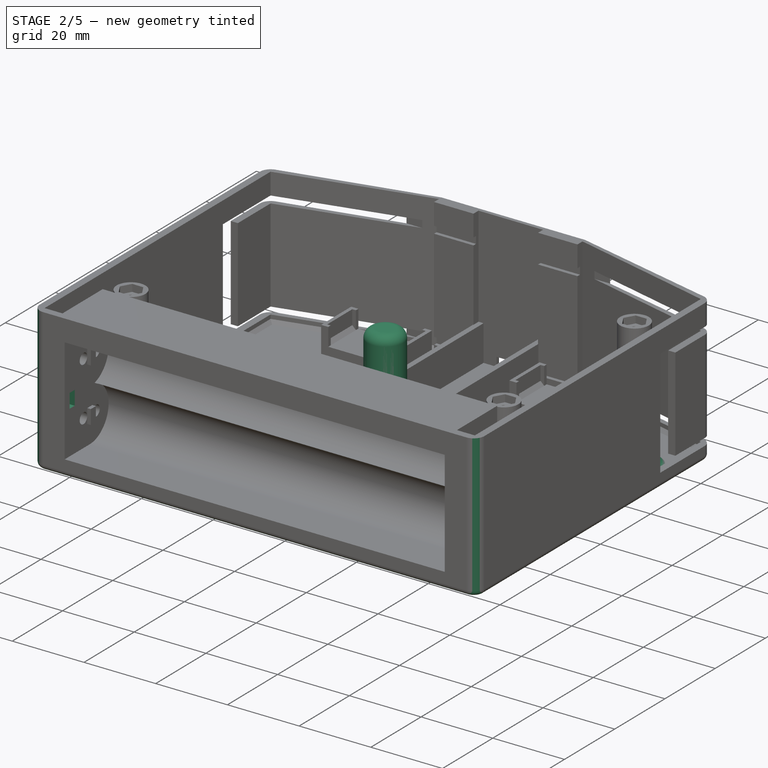
[diagram: stage 2 of 5 — iso view after this stage's code; geometry added in this stage tinted green]
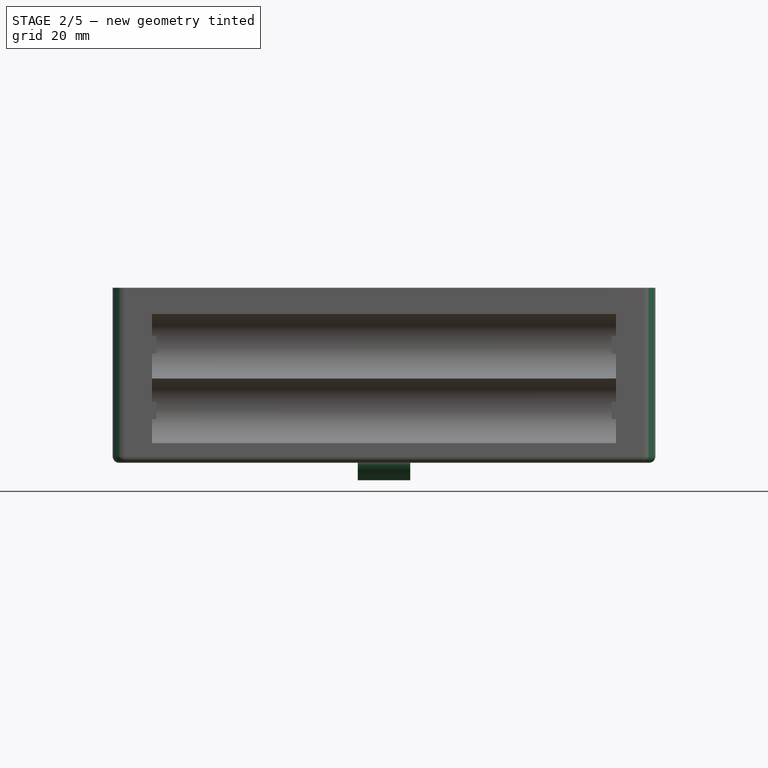
[diagram: stage 2 of 5 — front view after this stage's code; geometry added in this stage tinted green]
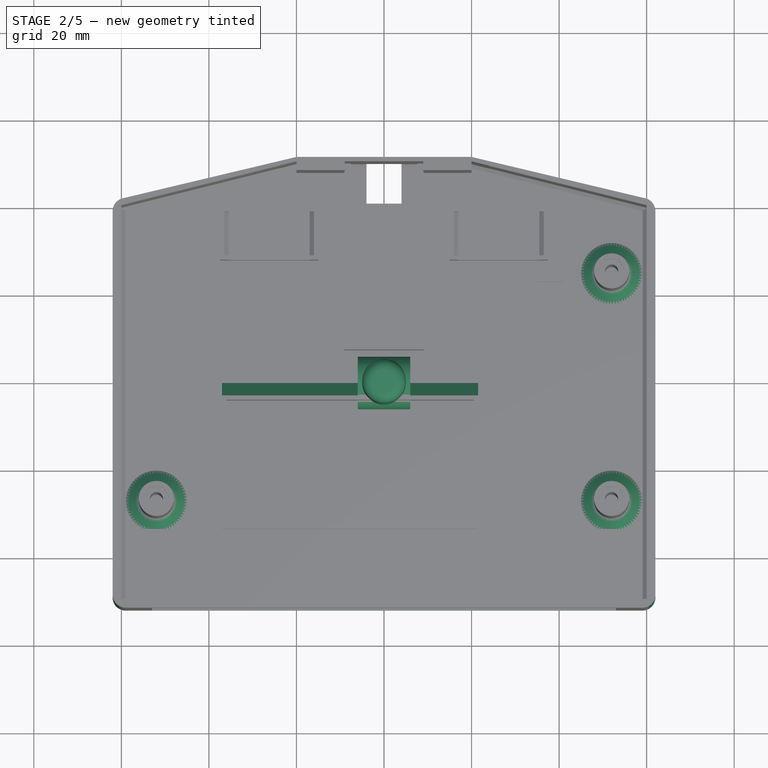
[diagram: stage 2 of 5 — top view after this stage's code; geometry added in this stage tinted green]
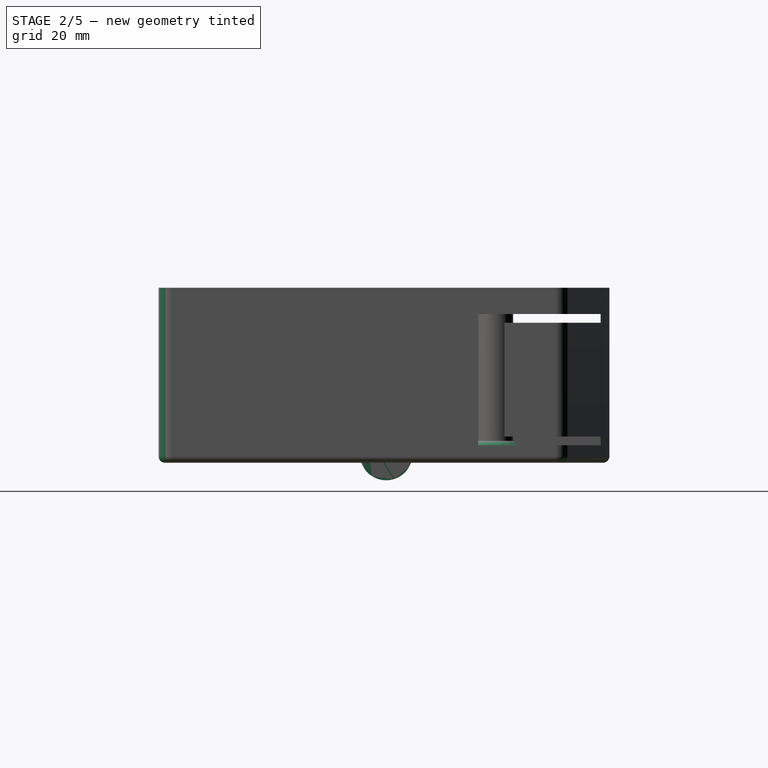
[diagram: stage 2 of 5 — right view after this stage's code; geometry added in this stage tinted green]
FEATURE [PartDesign::Fillet] Fillet
  Base = -> Pocket007 [Edge69,Edge68,Edge60,Edge30,Edge34,Edge26,Edge56,Edge64]
  BaseFeature = -> Pocket007
  Radius = 3
  SupportTransform = false
FEATURE [PartDesign::Body] Body004  label="Bottom_Switch"
  Group = -> [Sketch047,Sketch048,Sketch046,Sketch049,Pad024,Pad026,Pad025,Chamfer001,Pocket023,Sketch050,Pad023]
  Origin = -> Origin004
  Placement = pos=(-44,11,13) rot=(0,0,1;0rad)
  Tip = -> Pad023
FEATURE [Sketcher::SketchObject] Sketch051  label="Base_BigCircle001"
  FullyConstrained = true
  MapMode = 5
  Placement = pos=(0,0,0) rot=(0.57735,0.57735,0.57735;2.0944rad)
  Support = -> [YZ_Plane005]
  sketch-geometry (1):
    g0: Circle CenterX=0 CenterY=0 CenterZ=0 NormalX=0 NormalY=0 NormalZ=1 AngleXU=0 Radius=6
  constraints (2):
    c: Radius(g0) = 6
    c: Coincident(g0,g-1)
FEATURE [Sketcher::SketchObject] Sketch052  label="SmallPocket001"
  FullyConstrained = true
  MapMode = 5
  Placement = pos=(0,0,0) rot=(0.57735,0.57735,0.57735;2.0944rad)
  Support = -> [YZ_Plane005]
  sketch-geometry (1):
    g0: Circle CenterX=0 CenterY=0 CenterZ=0 NormalX=0 NormalY=0 NormalZ=1 AngleXU=0 Radius=3.1
  constraints (2):
    c: Coincident(g0,g-1)
    c: Radius(g0) = 3.1
FEATURE [Sketcher::SketchObject] Sketch053  label="SmallCircle001"
  FullyConstrained = true
  MapMode = 5
  Support = -> [XY_Plane005]
  sketch-geometry (1):
    g0: Circle CenterX=0 CenterY=0 CenterZ=0 NormalX=0 NormalY=0 NormalZ=1 AngleXU=0 Radius=2
  constraints (2):
    c: Coincident(g0,g-1)
    c: Radius(g0) = 2
FEATURE [Sketcher::SketchObject] Sketch054  label="BigCircle001"
  FullyConstrained = true
  MapMode = 5
  Support = -> [XY_Plane005]
  sketch-geometry (1):
    g0: Circle CenterX=0 CenterY=0 CenterZ=0 NormalX=0 NormalY=0 NormalZ=1 AngleXU=0 Radius=5
  constraints (2):
    c: Coincident(g0,g-1)
    c: Radius(g0) = 5
FEATURE [Sketcher::SketchObject] Sketch055
  FullyConstrained = true
  MapMode = 5
  Placement = pos=(0,0,0) rot=(1,0,0;1.5708rad)
  Support = -> [XZ_Plane005]
  sketch-geometry (4):
    g0: LineSegment StartX=-1.5 StartY=4 StartZ=0 EndX=1.5 EndY=4 EndZ=0
    g1: LineSegment StartX=1.5 StartY=4 StartZ=0 EndX=1.5 EndY=-4 EndZ=0
    g2: LineSegment StartX=1.5 StartY=-4 StartZ=0 EndX=-1.5 EndY=-4 EndZ=0
    g3: LineSegment StartX=-1.5 StartY=-4 StartZ=0 EndX=-1.5 EndY=4 EndZ=0
  constraints (12):
    c: Coincident(g0,g1)
    c: Coincident(g1,g2)
    c: Coincident(g2,g3)
    c: Coincident(g3,g0)
    c: Horizontal(g0)
    c: Horizontal(g2)
    c: Vertical(g1)
    c: Vertical(g3)
    c: DistanceX(g0,g-1) = 1.5
    c: DistanceX(g0,g0) = 3
    c: DistanceY(g-1,g0) = 4
    c: DistanceY(g1,g1) = 8
FEATURE [PartDesign::Pad] Pad028  label="Pad029"
  Direction = (1,1,1)
  Length = 12
  Length2 = 100
  Midplane = true
  Placement = pos=(0,0,0) rot=(0.57735,0.57735,0.57735;2.0944rad)
  Profile = -> Sketch051
  Type = 0
FEATURE [PartDesign::Body] Body005  label="Bottom_Switch2"
  Group = -> [Sketch051,Sketch054,Sketch053,Sketch052,Pad028,Pad029,Pad030,Chamfer002,Pocket024,Sketch055,Pad027]
  Origin = -> Origin005
  Placement = pos=(38,12,13) rot=(0,0,-1;1.5708rad)
  Tip = -> Pad027
FEATURE [Sketcher::SketchObject] Sketch056
  FullyConstrained = true
  MapMode = 5
  Support = -> [XY_Plane006]
  sketch-geometry (1):
    g0: Circle CenterX=0 CenterY=0 CenterZ=0 NormalX=0 NormalY=0 NormalZ=1 AngleXU=0 Radius=5
  constraints (2):
    c: Coincident(g0,g-1)
    c: Radius(g0) = 5
FEATURE [PartDesign::Pad] Pad031  label="Pad032"
  Direction = (1,1,1)
  Length = 30
  Length2 = 100
  Profile = -> Sketch056
  Type = 0
FEATURE [Sketcher::SketchObject] Sketch057
  FullyConstrained = true
  MapMode = 5
  Support = -> [XY_Plane006]
  sketch-geometry (1):
    g0: Circle CenterX=0 CenterY=0 CenterZ=0 NormalX=0 NormalY=0 NormalZ=1 AngleXU=0 Radius=2.1
  constraints (2):
    c: Coincident(g0,g-1)
    c: Radius(g0) = 2.1
FEATURE [PartDesign::Pocket] Pocket025  label="Pocket028"
  BaseFeature = -> Pad031
  Length = 5
  Length2 = 100
  Profile = -> Sketch057
  Reversed = true
  Type = 0
FEATURE [PartDesign::Fillet] Fillet002
  Base = -> Pocket025 [Face3]
  BaseFeature = -> Pocket025
  Radius = 2.5
  SupportTransform = false
FEATURE [PartDesign::Body] Body006  label="Switch_Upper"
  Group = -> [Sketch057,Sketch056,Pad031,Pocket025,Fillet002]
  Origin = -> Origin006
  Placement = pos=(-44,11,36) rot=(0,0,1;0rad)
  Tip = -> Fillet002
FEATURE [Sketcher::SketchObject] Sketch058
  FullyConstrained = true
  MapMode = 5
  Support = -> [XY_Plane007]
  sketch-geometry (1):
    g0: Circle CenterX=0 CenterY=0 CenterZ=0 NormalX=0 NormalY=0 NormalZ=1 AngleXU=0 Radius=2.1
  constraints (2):
    c: Coincident(g0,g-1)
    c: Radius(g0) = 2.1
FEATURE [Sketcher::SketchObject] Sketch059
  FullyConstrained = true
  MapMode = 5
  Support = -> [XY_Plane007]
  sketch-geometry (1):
    g0: Circle CenterX=0 CenterY=0 CenterZ=0 NormalX=0 NormalY=0 NormalZ=1 AngleXU=0 Radius=5
  constraints (2):
    c: Coincident(g0,g-1)
    c: Radius(g0) = 5
FEATURE [PartDesign::Pad] Pad032  label="Pad033"
  Direction = (1,1,1)
  Length = 30
  Length2 = 100
  Profile = -> Sketch059
  Type = 0
FEATURE [PartDesign::Pocket] Pocket026  label="Pocket029"
  BaseFeature = -> Pad032
  Length = 5
  Length2 = 100
  Profile = -> Sketch058
  Reversed = true
  Type = 0
FEATURE [PartDesign::Fillet] Fillet003
  Base = -> Pocket026 [Face3]
  BaseFeature = -> Pocket026
  Radius = 2.5
  SupportTransform = false
FEATURE [PartDesign::Body] Body007  label="Switch_Upper2"
  Group = -> [Sketch058,Sketch059,Pad032,Pocket026,Fillet003]
  Origin = -> Origin007
  Placement = pos=(38,12,35) rot=(0,0,1;0rad)
  Tip = -> Fillet003
FEATURE [PartDesign::Chamfer] Chamfer003
  Angle = 45
  Base = -> Fillet [Edge370,Edge365,Edge375]
  BaseFeature = -> Fillet
  ChamferType = 0
  FlipDirection = false
  Size = 3
  Size2 = 1
  SupportTransform = false
FEATURE [PartDesign::Chamfer] Chamfer004
  Angle = 45
  Base = -> Chamfer003 [Edge375,Edge370,Edge399,Edge394]
  BaseFeature = -> Chamfer003
  ChamferType = 0
  FlipDirection = false
  Size = 1
  Size2 = 1
  SupportTransform = false
FEATURE [PartDesign::Chamfer] Chamfer005
  Angle = 45
  Base = -> Chamfer004 [Edge54,Edge56,Edge63,Edge65]
  BaseFeature = -> Chamfer004
  ChamferType = 0
  FlipDirection = false
  Size = 0.9
  Size2 = 1
  SupportTransform = false
FEATURE [PartDesign::Chamfer] Chamfer006
  Angle = 45
  Base = -> Chamfer005 [Edge27]
  BaseFeature = -> Chamfer005
  ChamferType = 0
  FlipDirection = false
  Size = 3
  Size2 = 1
  SupportTransform = false
FEATURE [PartDesign::Fillet] Fillet004
  Base = -> Chamfer006 [Face175]
  BaseFeature = -> Chamfer006
  Radius = 1.5
  SupportTransform = false
FEATURE [Sketcher::SketchObject] Sketch060
  FullyConstrained = true
  MapMode = 5
  Placement = pos=(0,0,0) rot=(0.57735,0.57735,0.57735;2.0944rad)
  Support = -> [YZ_Plane]
  sketch-geometry (4):
    g0: LineSegment StartX=-50 StartY=18.5 StartZ=0 EndX=-48 EndY=18.5 EndZ=0
    g1: LineSegment StartX=-48 StartY=18.5 StartZ=0 EndX=-48 EndY=14.5 EndZ=0
    g2: LineSegment StartX=-48 StartY=14.5 StartZ=0 EndX=-50 EndY=14.5 EndZ=0
    g3: LineSegment StartX=-50 StartY=14.5 StartZ=0 EndX=-50 EndY=18.5 EndZ=0
  constraints (12):
    c: Coincident(g0,g1)
    c: Coincident(g1,g2)
    c: Coincident(g2,g3)
    c: Coincident(g3,g0)
    c: Horizontal(g0)
    c: Horizontal(g2)
    c: Vertical(g1)
    c: Vertical(g3)
    c: DistanceX(g0,g0) = 2
    c: DistanceX(g1,g-1) = 48
    c: DistanceY(g1,g1) = 4
    c: DistanceY(g-1,g1) = 14.5
FEATURE [PartDesign::Pocket] Pocket027  label="Pocket030"
  BaseFeature = -> Fillet004
  Length = 120
  Length2 = 100
  Midplane = true
  Profile = -> Sketch060
  Type = 0
FEATURE [PartDesign::Body] Body
  Group = -> [Sketch,Sketch002,Sketch003,Sketch004,Sketch005,Sketch006,Sketch007,Sketch008,Sketch009,Sketch010,Pad,Pocket,Pocket001,Pocket002,Pad001,Pocket003,Pad002,Pocket004,Sketch011,Pad003,Pad004,Sketch012,Pad005,Pocket005,Sketch013,Sketch014,Sketch015,Pocket006,Pad006,Pocket007,Fillet,Chamfer003,Chamfer004,Chamfer005,Chamfer006,Fillet004,Sketch060,Pocket027]
  Origin = -> Origin
  Tip = -> Pocket027
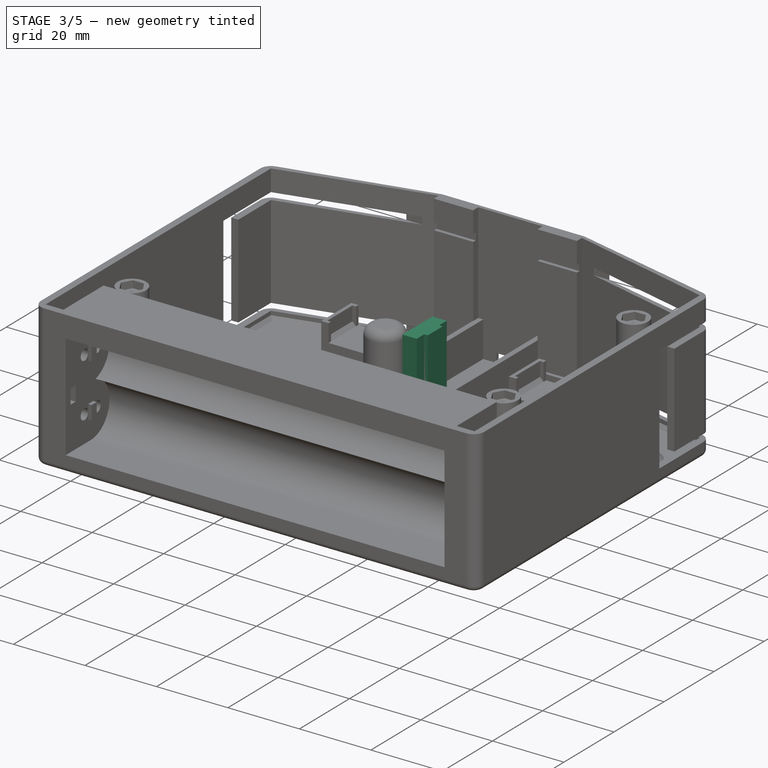
[diagram: stage 3 of 5 — iso view after this stage's code; geometry added in this stage tinted green]
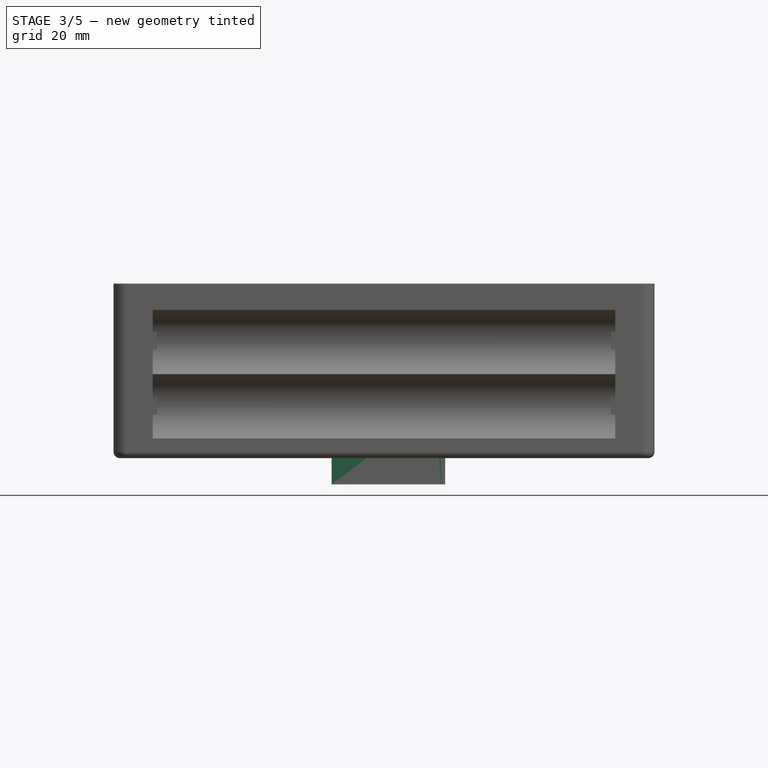
[diagram: stage 3 of 5 — front view after this stage's code; geometry added in this stage tinted green]
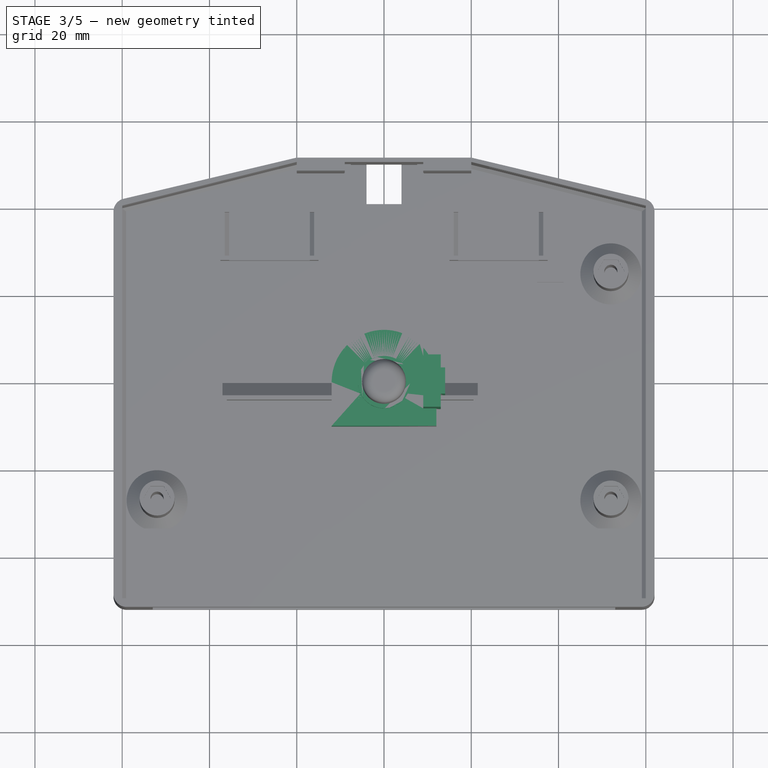
[diagram: stage 3 of 5 — top view after this stage's code; geometry added in this stage tinted green]
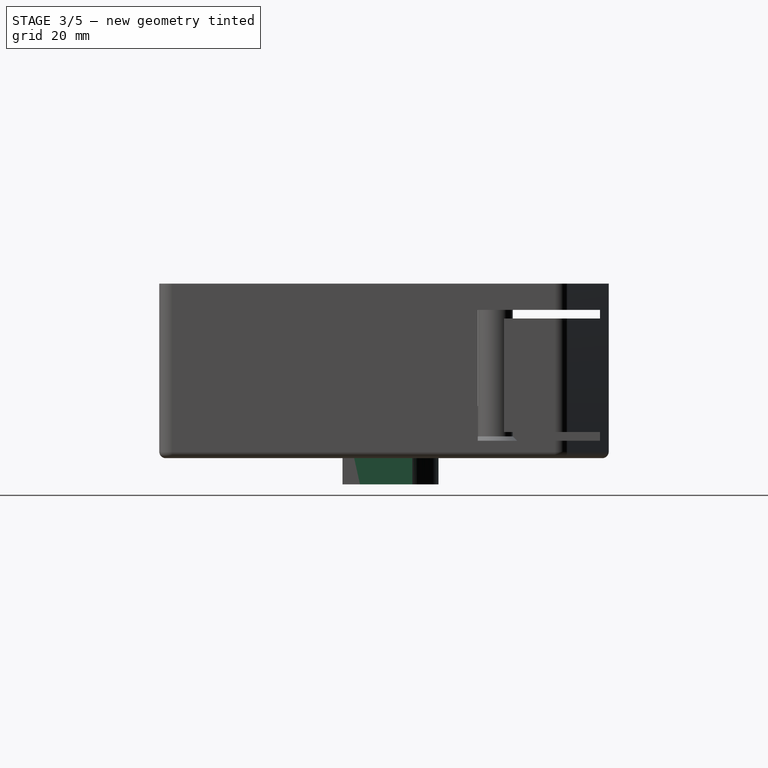
[diagram: stage 3 of 5 — right view after this stage's code; geometry added in this stage tinted green]
FEATURE [PartDesign::Body] Body002  label="PotentiometerHolder"
  Group = -> [Sketch023,Sketch022,Sketch028,Sketch024,Sketch027,Sketch025,Pad013,Pad014,Pad015,Pad011,Pocket015,Sketch030,Sketch029,Sketch026,Pad012,Pocket013,Pocket014,Pocket016,Sketch031,Sketch033,Sketch032,Pad009,Pad010,Pocket017]
  Origin = -> Origin002
  Placement = pos=(-23,11,13) rot=(0.707107,0,-0.707107;3.14159rad)
  Tip = -> Pocket017
FEATURE [Sketcher::SketchObject] Sketch034  label="PillarSmall001"
  AttachmentOffset = pos=(0,-8,9) rot=(0,0,1;0rad)
  FullyConstrained = true
  MapMode = 5
  Placement = pos=(9,-3.8e-15,-8) rot=(0.57735,0.57735,0.57735;2.0944rad)
  Support = -> [YZ_Plane003]
  sketch-geometry (4):
    g0: LineSegment StartX=-3 StartY=0 StartZ=0 EndX=3 EndY=0 EndZ=0
    g1: LineSegment StartX=3 StartY=0 StartZ=0 EndX=3 EndY=40 EndZ=0
    g2: LineSegment StartX=3 StartY=40 StartZ=0 EndX=-3 EndY=40 EndZ=0
    g3: LineSegment StartX=-3 StartY=40 StartZ=0 EndX=-3 EndY=0 EndZ=0
  constraints (12):
    c: Coincident(g0,g1)
    c: Coincident(g1,g2)
    c: Coincident(g2,g3)
    c: Coincident(g3,g0)
    c: Horizontal(g0)
    c: Horizontal(g2)
    c: Vertical(g1)
    c: Vertical(g3)
    c: PointOnObject(g0,g-1)
    c: DistanceX(g2,g2) = 6
    c: DistanceX(g2,g-1) = 3
    c: DistanceY(g1,g1) = 40
FEATURE [Sketcher::SketchObject] Sketch035
  AttachmentOffset = pos=(0,-4,-10) rot=(0,0,1;0rad)
  FullyConstrained = true
  MapMode = 5
  Placement = pos=(-10,1.3e-15,-4) rot=(0.57735,0.57735,0.57735;2.0944rad)
  Support = -> [YZ_Plane003]
  sketch-geometry (1):
    g0: Circle CenterX=0 CenterY=0 CenterZ=0 NormalX=0 NormalY=0 NormalZ=1 AngleXU=0 Radius=4
  constraints (2):
    c: Coincident(g0,g-1)
    c: Radius(g0) = 4
FEATURE [Sketcher::SketchObject] Sketch036  label="BasePocket001"
  AttachmentOffset = pos=(0,0,-8) rot=(0,0,1;0rad)
  FullyConstrained = true
  MapMode = 5
  Placement = pos=(0,0,-8) rot=(0,0,1;0rad)
  Support = -> [XY_Plane003]
  sketch-geometry (4):
    g0: ArcOfCircle CenterX=0 CenterY=0 CenterZ=0 NormalX=0 NormalY=0 NormalZ=1 AngleXU=0 Radius=9 StartAngle=0 EndAngle=3.14159
    g1: LineSegment StartX=-9 StartY=1.1e-15 StartZ=0 EndX=-9 EndY=-10 EndZ=0
    g2: LineSegment StartX=-9 StartY=-10 StartZ=0 EndX=9 EndY=-10 EndZ=0
    g3: LineSegment StartX=9 StartY=-10 StartZ=0 EndX=9 EndY=0 EndZ=0
  constraints (12):
    c: Coincident(g0,g-1)
    c: Coincident(g1,g2)
    c: Coincident(g2,g3)
    c: Horizontal(g2)
    c: Vertical(g1)
    c: Vertical(g3)
    c: Radius(g0) = 9
    c: Coincident(g0,g3)
    c: Coincident(g0,g1)
    c: DistanceY(g0,g0) = 0
    c: PointOnObject(g0,g-1)
    c: DistanceY(g3,g3) = 10
FEATURE [Sketcher::SketchObject] Sketch037  label="Base001"
  AttachmentOffset = pos=(0,0,-8) rot=(0,0,1;0rad)
  FullyConstrained = true
  MapMode = 5
  Placement = pos=(0,0,-8) rot=(0,0,1;0rad)
  Support = -> [XY_Plane003]
  sketch-geometry (4):
    g0: LineSegment StartX=12 StartY=0 StartZ=0 EndX=12 EndY=-10 EndZ=0
    g1: LineSegment StartX=12 StartY=-10 StartZ=0 EndX=-12 EndY=-10 EndZ=0
    g2: LineSegment StartX=-12 StartY=-10 StartZ=0 EndX=-12 EndY=1.8e-15 EndZ=0
    g3: ArcOfCircle CenterX=0 CenterY=0 CenterZ=0 NormalX=0 NormalY=0 NormalZ=1 AngleXU=0 Radius=12 StartAngle=0 EndAngle=3.14159
  constraints (12):
    c: Coincident(g0,g1)
    c: Coincident(g1,g2)
    c: Horizontal(g1)
    c: Vertical(g0)
    c: Vertical(g2)
    c: PointOnObject(g2,g-1)
    c: Coincident(g3,g-1)
    c: Coincident(g0,g3)
    c: Coincident(g2,g3)
    c: PointOnObject(g0,g-1)
    c: Radius(g3) = 12
    c: DistanceY(g0,g0) = 10
FEATURE [PartDesign::Pad] Pad019  label="Pad020"
  Direction = (1,1,1)
  Length = 18
  Length2 = 100
  Profile = -> Sketch037
  Type = 0
FEATURE [Sketcher::SketchObject] Sketch038  label="Padding001"
  FullyConstrained = true
  MapMode = 5
  Support = -> [XY_Plane003]
  sketch-geometry (1):
    g0: Circle CenterX=0 CenterY=0 CenterZ=0 NormalX=0 NormalY=0 NormalZ=1 AngleXU=0 Radius=6
  constraints (2):
    c: Coincident(g0,g-1)
    c: Radius(g0) = 6
FEATURE [Sketcher::SketchObject] Sketch039  label="Pocket020"
  FullyConstrained = true
  MapMode = 5
  Support = -> [XY_Plane003]
  sketch-geometry (1):
    g0: Circle CenterX=0 CenterY=0 CenterZ=0 NormalX=0 NormalY=0 NormalZ=1 AngleXU=0 Radius=3.5
  constraints (2):
    c: Coincident(g0,g-1)
    c: Radius(g0) = 3.5
FEATURE [Sketcher::SketchObject] Sketch040  label="PillarBig001"
  AttachmentOffset = pos=(0,-8,9) rot=(0,0,1;0rad)
  FullyConstrained = true
  MapMode = 5
  Placement = pos=(9,-3.8e-15,-8) rot=(0.57735,0.57735,0.57735;2.0944rad)
  Support = -> [YZ_Plane003]
  sketch-geometry (4):
    g0: LineSegment StartX=-6 StartY=40 StartZ=0 EndX=6 EndY=40 EndZ=0
    g1: LineSegment StartX=6 StartY=40 StartZ=0 EndX=6 EndY=0 EndZ=0
    g2: LineSegment StartX=6 StartY=0 StartZ=0 EndX=-6 EndY=0 EndZ=0
    g3: LineSegment StartX=-6 StartY=0 StartZ=0 EndX=-6 EndY=40 EndZ=0
  constraints (12):
    c: Coincident(g0,g1)
    c: Coincident(g1,g2)
    c: Coincident(g2,g3)
    c: Coincident(g3,g0)
    c: Horizontal(g0)
    c: Horizontal(g2)
    c: Vertical(g1)
    c: Vertical(g3)
    c: PointOnObject(g1,g-1)
    c: DistanceY(g1,g1) = 40
    c: DistanceX(g2,g-1) = 6
    c: DistanceX(g0,g0) = 12
FEATURE [PartDesign::Pad] Pad020  label="Pad021"
  BaseFeature = -> Pad019
  Direction = (1,1,1)
  Length = 4
  Length2 = 100
  Profile = -> Sketch040
  Type = 0
FEATURE [PartDesign::Pad] Pad018  label="Pad019"
  BaseFeature = -> Pad020
  Direction = (1,1,1)
  Length = 5
  Length2 = 100
  Profile = -> Sketch034
  Type = 0
FEATURE [PartDesign::Pad] Pad017  label="Pad018"
  BaseFeature = -> Pad018
  Direction = (1,1,1)
  Length = 12
  Length2 = 100
  Profile = -> Sketch038
  Type = 0
FEATURE [PartDesign::Body] Body003  label="PotentiometerHolder2"
  Group = -> [Sketch036,Sketch037,Sketch039,Sketch038,Sketch040,Sketch034,Pad019,Pad020,Pad018,Pad017,Pocket021,Sketch044,Sketch041,Sketch035,Pad016,Pocket020,Pocket018,Pocket022,Sketch042,Sketch045,Sketch043,Pad022,Pad021,Pocket019]
  Origin = -> Origin003
  Placement = pos=(38,-9,13) rot=(0.57735,-0.57735,-0.57735;4.18879rad)
  Tip = -> Pocket019
FEATURE [Sketcher::SketchObject] Sketch046  label="SmallCircle"
  FullyConstrained = true
  MapMode = 5
  Support = -> [XY_Plane004]
  sketch-geometry (1):
    g0: Circle CenterX=0 CenterY=0 CenterZ=0 NormalX=0 NormalY=0 NormalZ=1 AngleXU=0 Radius=2
  constraints (2):
    c: Coincident(g0,g-1)
    c: Radius(g0) = 2
FEATURE [Sketcher::SketchObject] Sketch047  label="Base_BigCircle"
  FullyConstrained = true
  MapMode = 5
  Placement = pos=(0,0,0) rot=(0.57735,0.57735,0.57735;2.0944rad)
  Support = -> [YZ_Plane004]
  sketch-geometry (1):
    g0: Circle CenterX=0 CenterY=0 CenterZ=0 NormalX=0 NormalY=0 NormalZ=1 AngleXU=0 Radius=6
  constraints (2):
    c: Radius(g0) = 6
    c: Coincident(g0,g-1)
FEATURE [PartDesign::Pad] Pad024  label="Pad025"
  Direction = (1,1,1)
  Length = 12
  Length2 = 100
  Midplane = true
  Placement = pos=(0,0,0) rot=(0.57735,0.57735,0.57735;2.0944rad)
  Profile = -> Sketch047
  Type = 0
FEATURE [Sketcher::SketchObject] Sketch048  label="BigCircle"
  FullyConstrained = true
  MapMode = 5
  Support = -> [XY_Plane004]
  sketch-geometry (1):
    g0: Circle CenterX=0 CenterY=0 CenterZ=0 NormalX=0 NormalY=0 NormalZ=1 AngleXU=0 Radius=5
  constraints (2):
    c: Coincident(g0,g-1)
    c: Radius(g0) = 5
FEATURE [PartDesign::Pad] Pad026  label="Pad027"
  BaseFeature = -> Pad024
  Direction = (1,1,1)
  Length = 11
  Length2 = 100
  Placement = pos=(0,0,0) rot=(0.57735,0.57735,0.57735;2.0944rad)
  Profile = -> Sketch048
  Type = 0
FEATURE [PartDesign::Pad] Pad025  label="Pad026"
  BaseFeature = -> Pad026
  Direction = (1,1,1)
  Length = 25
  Length2 = 100
  Placement = pos=(0,0,0) rot=(0.57735,0.57735,0.57735;2.0944rad)
  Profile = -> Sketch046
  Type = 0
FEATURE [PartDesign::Chamfer] Chamfer001
  Angle = 45
  Base = -> Pad025 [Edge7]
  BaseFeature = -> Pad025
  ChamferType = 0
  FlipDirection = false
  Placement = pos=(0,0,0) rot=(0.57735,0.57735,0.57735;2.0944rad)
  Size = 2.99
  Size2 = 1
  SupportTransform = false
FEATURE [Sketcher::SketchObject] Sketch049  label="SmallPocket"
  FullyConstrained = true
  MapMode = 5
  Placement = pos=(0,0,0) rot=(0.57735,0.57735,0.57735;2.0944rad)
  Support = -> [YZ_Plane004]
  sketch-geometry (1):
    g0: Circle CenterX=0 CenterY=0 CenterZ=0 NormalX=0 NormalY=0 NormalZ=1 AngleXU=0 Radius=3.1
  constraints (2):
    c: Coincident(g0,g-1)
    c: Radius(g0) = 3.1
FEATURE [PartDesign::Pocket] Pocket023  label="Pocket026"
  BaseFeature = -> Chamfer001
  Length = 200
  Length2 = 100
  Midplane = true
  Placement = pos=(0,0,0) rot=(0.57735,0.57735,0.57735;2.0944rad)
  Profile = -> Sketch049
  Type = 0
FEATURE [Sketcher::SketchObject] Sketch050
  FullyConstrained = true
  MapMode = 5
  Placement = pos=(0,0,0) rot=(1,0,0;1.5708rad)
  Support = -> [XZ_Plane004]
  sketch-geometry (4):
    g0: LineSegment StartX=-1.5 StartY=4 StartZ=0 EndX=1.5 EndY=4 EndZ=0
    g1: LineSegment StartX=1.5 StartY=4 StartZ=0 EndX=1.5 EndY=-4 EndZ=0
    g2: LineSegment StartX=1.5 StartY=-4 StartZ=0 EndX=-1.5 EndY=-4 EndZ=0
    g3: LineSegment StartX=-1.5 StartY=-4 StartZ=0 EndX=-1.5 EndY=4 EndZ=0
  constraints (12):
    c: Coincident(g0,g1)
    c: Coincident(g1,g2)
    c: Coincident(g2,g3)
    c: Coincident(g3,g0)
    c: Horizontal(g0)
    c: Horizontal(g2)
    c: Vertical(g1)
    c: Vertical(g3)
    c: DistanceX(g0,g-1) = 1.5
    c: DistanceX(g0,g0) = 3
    c: DistanceY(g-1,g0) = 4
    c: DistanceY(g1,g1) = 8
FEATURE [PartDesign::Pad] Pad023  label="Pad024"
  BaseFeature = -> Pocket023
  Direction = (1,1,1)
  Length = 0.7
  Length2 = 100
  Midplane = true
  Placement = pos=(0,0,0) rot=(0.57735,0.57735,0.57735;2.0944rad)
  Profile = -> Sketch050
  Type = 0
FEATURE [PartDesign::Pad] Pad029  label="Pad030"
  BaseFeature = -> Pad028
  Direction = (1,1,1)
  Length = 11
  Length2 = 100
  Placement = pos=(0,0,0) rot=(0.57735,0.57735,0.57735;2.0944rad)
  Profile = -> Sketch054
  Type = 0
FEATURE [PartDesign::Pad] Pad030  label="Pad031"
  BaseFeature = -> Pad029
  Direction = (1,1,1)
  Length = 25
  Length2 = 100
  Placement = pos=(0,0,0) rot=(0.57735,0.57735,0.57735;2.0944rad)
  Profile = -> Sketch053
  Type = 0
FEATURE [PartDesign::Chamfer] Chamfer002
  Angle = 45
  Base = -> Pad030 [Edge7]
  BaseFeature = -> Pad030
  ChamferType = 0
  FlipDirection = false
  Placement = pos=(0,0,0) rot=(0.57735,0.57735,0.57735;2.0944rad)
  Size = 2.99
  Size2 = 1
  SupportTransform = false
FEATURE [PartDesign::Pocket] Pocket024  label="Pocket027"
  BaseFeature = -> Chamfer002
  Length = 200
  Length2 = 100
  Midplane = true
  Placement = pos=(0,0,0) rot=(0.57735,0.57735,0.57735;2.0944rad)
  Profile = -> Sketch052
  Type = 0
FEATURE [PartDesign::Pad] Pad027  label="Pad028"
  BaseFeature = -> Pocket024
  Direction = (1,1,1)
  Length = 0.7
  Length2 = 100
  Midplane = true
  Placement = pos=(0,0,0) rot=(0.57735,0.57735,0.57735;2.0944rad)
  Profile = -> Sketch055
  Type = 0
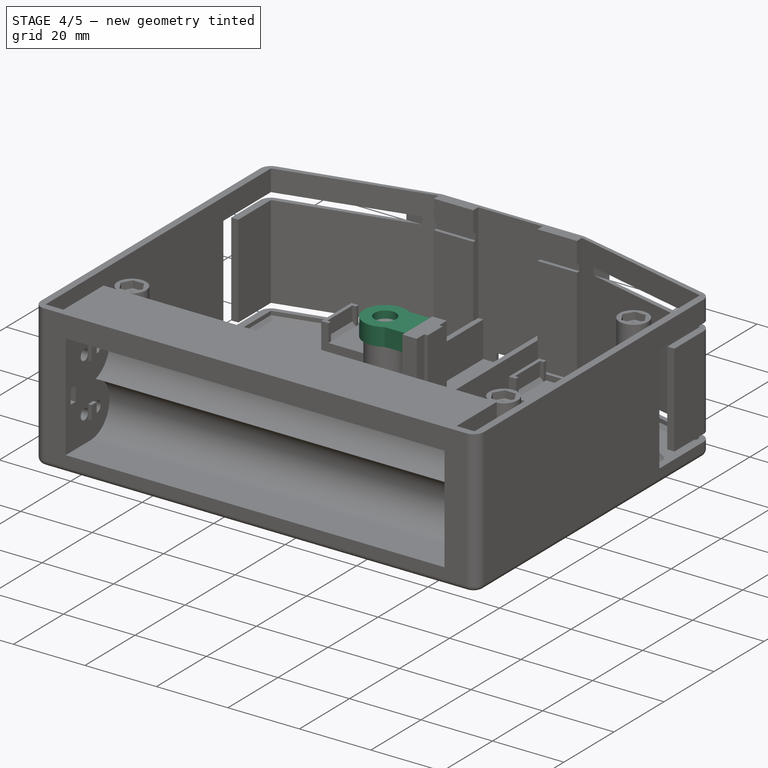
[diagram: stage 4 of 5 — iso view after this stage's code; geometry added in this stage tinted green]
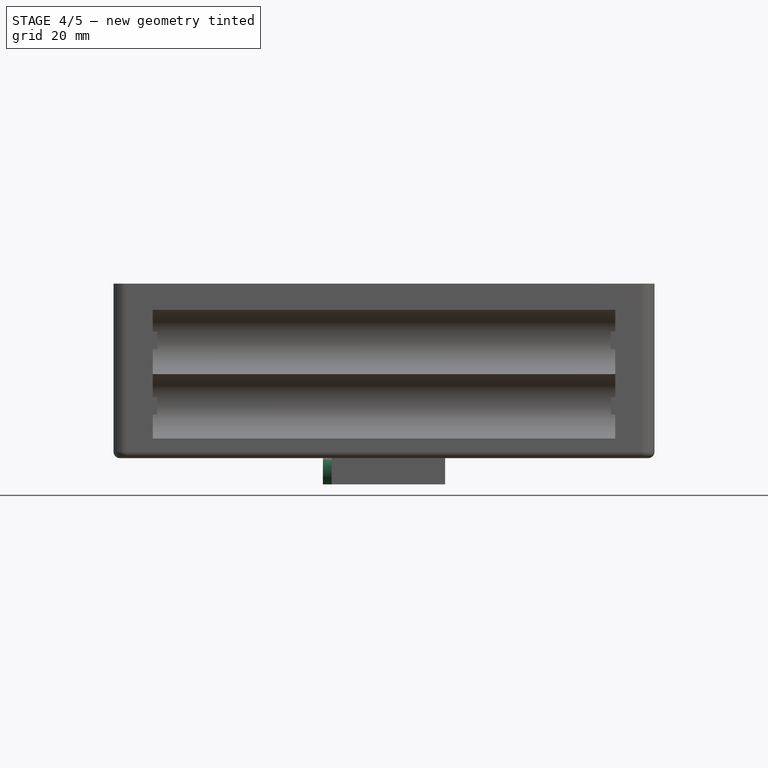
[diagram: stage 4 of 5 — front view after this stage's code; geometry added in this stage tinted green]
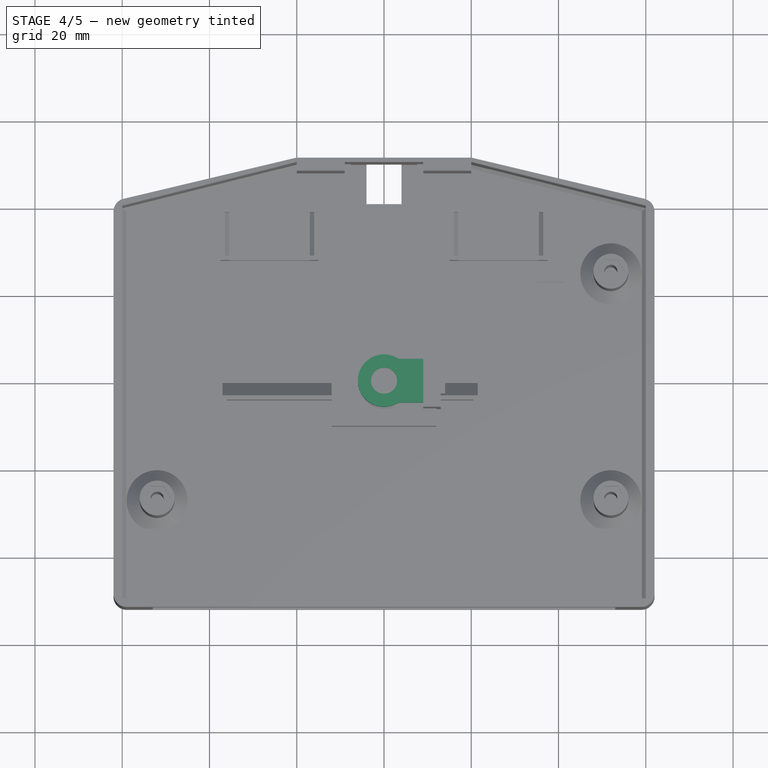
[diagram: stage 4 of 5 — top view after this stage's code; geometry added in this stage tinted green]
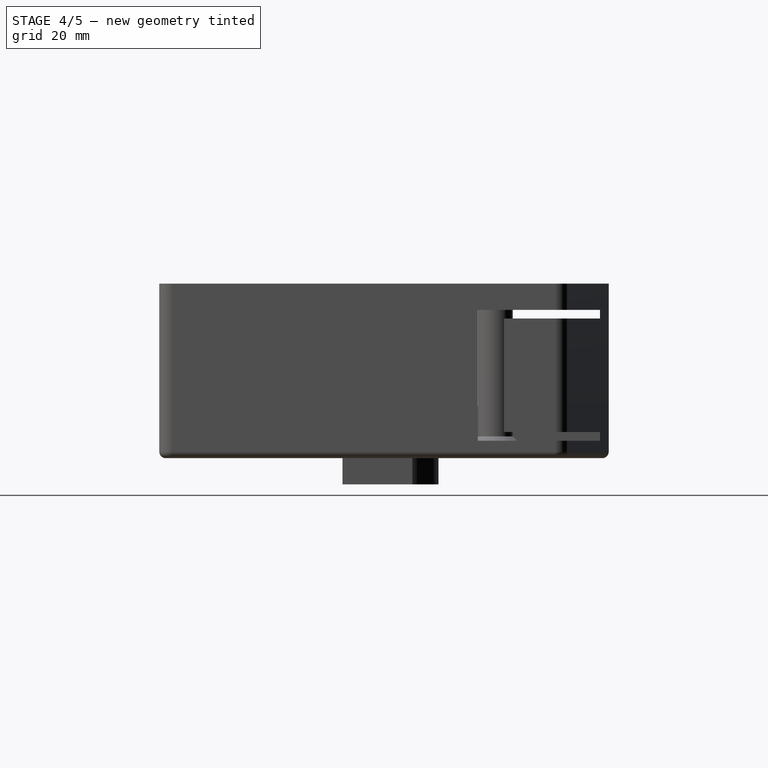
[diagram: stage 4 of 5 — right view after this stage's code; geometry added in this stage tinted green]
FEATURE [PartDesign::Body] Body001  label="Joystick_Cover"
  Group = -> [Sketch019,Sketch001,Sketch016,Sketch017,Sketch018,Sketch020,Pad008,Sketch021,Pad007,Pocket009,Pocket008,Pocket011,Pocket012,Pocket010,Chamfer,Fillet001]
  Origin = -> Origin001
  Placement = pos=(0,0,177) rot=(0,0,1;0rad)
  Tip = -> Fillet001
FEATURE [Sketcher::SketchObject] Sketch022  label="Base"
  AttachmentOffset = pos=(0,0,-8) rot=(0,0,1;0rad)
  FullyConstrained = true
  MapMode = 5
  Placement = pos=(0,0,-8) rot=(0,0,1;0rad)
  Support = -> [XY_Plane002]
  sketch-geometry (4):
    g0: LineSegment StartX=12 StartY=0 StartZ=0 EndX=12 EndY=-10 EndZ=0
    g1: LineSegment StartX=12 StartY=-10 StartZ=0 EndX=-12 EndY=-10 EndZ=0
    g2: LineSegment StartX=-12 StartY=-10 StartZ=0 EndX=-12 EndY=1.8e-15 EndZ=0
    g3: ArcOfCircle CenterX=0 CenterY=0 CenterZ=0 NormalX=0 NormalY=0 NormalZ=1 AngleXU=0 Radius=12 StartAngle=0 EndAngle=3.14159
  constraints (12):
    c: Coincident(g0,g1)
    c: Coincident(g1,g2)
    c: Horizontal(g1)
    c: Vertical(g0)
    c: Vertical(g2)
    c: PointOnObject(g2,g-1)
    c: Coincident(g3,g-1)
    c: Coincident(g0,g3)
    c: Coincident(g2,g3)
    c: PointOnObject(g0,g-1)
    c: Radius(g3) = 12
    c: DistanceY(g0,g0) = 10
FEATURE [Sketcher::SketchObject] Sketch023  label="BasePocket"
  AttachmentOffset = pos=(0,0,-8) rot=(0,0,1;0rad)
  FullyConstrained = true
  MapMode = 5
  Placement = pos=(0,0,-8) rot=(0,0,1;0rad)
  Support = -> [XY_Plane002]
  sketch-geometry (4):
    g0: ArcOfCircle CenterX=0 CenterY=0 CenterZ=0 NormalX=0 NormalY=0 NormalZ=1 AngleXU=0 Radius=9 StartAngle=0 EndAngle=3.14159
    g1: LineSegment StartX=-9 StartY=1.1e-15 StartZ=0 EndX=-9 EndY=-10 EndZ=0
    g2: LineSegment StartX=-9 StartY=-10 StartZ=0 EndX=9 EndY=-10 EndZ=0
    g3: LineSegment StartX=9 StartY=-10 StartZ=0 EndX=9 EndY=0 EndZ=0
  constraints (12):
    c: Coincident(g0,g-1)
    c: Coincident(g1,g2)
    c: Coincident(g2,g3)
    c: Horizontal(g2)
    c: Vertical(g1)
    c: Vertical(g3)
    c: Radius(g0) = 9
    c: Coincident(g0,g3)
    c: Coincident(g0,g1)
    c: DistanceY(g0,g0) = 0
    c: PointOnObject(g0,g-1)
    c: DistanceY(g3,g3) = 10
FEATURE [PartDesign::Pad] Pad013  label="Pad014"
  Direction = (1,1,1)
  Length = 18
  Length2 = 100
  Profile = -> Sketch022
  Type = 0
FEATURE [Sketcher::SketchObject] Sketch024  label="Padding"
  FullyConstrained = true
  MapMode = 5
  Support = -> [XY_Plane002]
  sketch-geometry (1):
    g0: Circle CenterX=0 CenterY=0 CenterZ=0 NormalX=0 NormalY=0 NormalZ=1 AngleXU=0 Radius=6
  constraints (2):
    c: Coincident(g0,g-1)
    c: Radius(g0) = 6
FEATURE [Sketcher::SketchObject] Sketch025  label="PillarSmall"
  AttachmentOffset = pos=(0,-8,9) rot=(0,0,1;0rad)
  FullyConstrained = true
  MapMode = 5
  Placement = pos=(9,-3.8e-15,-8) rot=(0.57735,0.57735,0.57735;2.0944rad)
  Support = -> [YZ_Plane002]
  sketch-geometry (4):
    g0: LineSegment StartX=-3 StartY=0 StartZ=0 EndX=3 EndY=0 EndZ=0
    g1: LineSegment StartX=3 StartY=0 StartZ=0 EndX=3 EndY=40 EndZ=0
    g2: LineSegment StartX=3 StartY=40 StartZ=0 EndX=-3 EndY=40 EndZ=0
    g3: LineSegment StartX=-3 StartY=40 StartZ=0 EndX=-3 EndY=0 EndZ=0
  constraints (12):
    c: Coincident(g0,g1)
    c: Coincident(g1,g2)
    c: Coincident(g2,g3)
    c: Coincident(g3,g0)
    c: Horizontal(g0)
    c: Horizontal(g2)
    c: Vertical(g1)
    c: Vertical(g3)
    c: PointOnObject(g0,g-1)
    c: DistanceX(g2,g2) = 6
    c: DistanceX(g2,g-1) = 3
    c: DistanceY(g1,g1) = 40
FEATURE [Sketcher::SketchObject] Sketch026
  AttachmentOffset = pos=(0,-4,-10) rot=(0,0,1;0rad)
  FullyConstrained = true
  MapMode = 5
  Placement = pos=(-10,1.3e-15,-4) rot=(0.57735,0.57735,0.57735;2.0944rad)
  Support = -> [YZ_Plane002]
  sketch-geometry (1):
    g0: Circle CenterX=0 CenterY=0 CenterZ=0 NormalX=0 NormalY=0 NormalZ=1 AngleXU=0 Radius=4
  constraints (2):
    c: Coincident(g0,g-1)
    c: Radius(g0) = 4
FEATURE [Sketcher::SketchObject] Sketch027  label="PillarBig"
  AttachmentOffset = pos=(0,-8,9) rot=(0,0,1;0rad)
  FullyConstrained = true
  MapMode = 5
  Placement = pos=(9,-3.8e-15,-8) rot=(0.57735,0.57735,0.57735;2.0944rad)
  Support = -> [YZ_Plane002]
  sketch-geometry (4):
    g0: LineSegment StartX=-6 StartY=40 StartZ=0 EndX=6 EndY=40 EndZ=0
    g1: LineSegment StartX=6 StartY=40 StartZ=0 EndX=6 EndY=0 EndZ=0
    g2: LineSegment StartX=6 StartY=0 StartZ=0 EndX=-6 EndY=0 EndZ=0
    g3: LineSegment StartX=-6 StartY=0 StartZ=0 EndX=-6 EndY=40 EndZ=0
  constraints (12):
    c: Coincident(g0,g1)
    c: Coincident(g1,g2)
    c: Coincident(g2,g3)
    c: Coincident(g3,g0)
    c: Horizontal(g0)
    c: Horizontal(g2)
    c: Vertical(g1)
    c: Vertical(g3)
    c: PointOnObject(g1,g-1)
    c: DistanceY(g1,g1) = 40
    c: DistanceX(g2,g-1) = 6
    c: DistanceX(g0,g0) = 12
FEATURE [PartDesign::Pad] Pad014  label="Pad015"
  BaseFeature = -> Pad013
  Direction = (1,1,1)
  Length = 4
  Length2 = 100
  Profile = -> Sketch027
  Type = 0
FEATURE [PartDesign::Pad] Pad015  label="Pad016"
  BaseFeature = -> Pad014
  Direction = (1,1,1)
  Length = 5
  Length2 = 100
  Profile = -> Sketch025
  Type = 0
FEATURE [PartDesign::Pad] Pad011  label="Pad012"
  BaseFeature = -> Pad015
  Direction = (1,1,1)
  Length = 12
  Length2 = 100
  Profile = -> Sketch024
  Type = 0
FEATURE [Sketcher::SketchObject] Sketch028  label="Pocket019"
  FullyConstrained = true
  MapMode = 5
  Support = -> [XY_Plane002]
  sketch-geometry (1):
    g0: Circle CenterX=0 CenterY=0 CenterZ=0 NormalX=0 NormalY=0 NormalZ=1 AngleXU=0 Radius=3.5
  constraints (2):
    c: Coincident(g0,g-1)
    c: Radius(g0) = 3.5
FEATURE [PartDesign::Pocket] Pocket015  label="Pocket016"
  BaseFeature = -> Pad011
  Length = 200
  Length2 = 100
  Midplane = true
  Profile = -> Sketch028
  Type = 0
FEATURE [PartDesign::Pad] Pad012  label="Pad013"
  BaseFeature = -> Pocket015
  Direction = (1,1,1)
  Length = 4
  Length2 = 100
  Profile = -> Sketch026
  Reversed = true
  Type = 0
FEATURE [Sketcher::SketchObject] Sketch041  label="Hexagon001"
  AttachmentOffset = pos=(0,-4,-14) rot=(0,0,1;0rad)
  FullyConstrained = true
  MapMode = 5
  Placement = pos=(-14,2.2e-15,-4) rot=(0.57735,0.57735,0.57735;2.0944rad)
  Support = -> [YZ_Plane003]
  sketch-geometry (7):
    g0: LineSegment StartX=3.2 StartY=0 StartZ=0 EndX=1.6 EndY=2.77128 EndZ=0
    g1: LineSegment StartX=1.6 StartY=2.77128 StartZ=0 EndX=-1.6 EndY=2.77128 EndZ=0
    g2: LineSegment StartX=-1.6 StartY=2.77128 StartZ=0 EndX=-3.2 EndY=-6.8754e-12 EndZ=0
    g3: LineSegment StartX=-3.2 StartY=-6.8755e-12 StartZ=0 EndX=-1.6 EndY=-2.77128 EndZ=0
    g4: LineSegment StartX=-1.6 StartY=-2.77128 StartZ=0 EndX=1.6 EndY=-2.77128 EndZ=0
    g5: LineSegment StartX=1.6 StartY=-2.77128 StartZ=0 EndX=3.2 EndY=0 EndZ=0
    g6: Circle CenterX=0 CenterY=0 CenterZ=0 NormalX=0 NormalY=0 NormalZ=1 AngleXU=0 Radius=3.2
  constraints (16):
    c: Coincident(g0,g1)
    c: Coincident(g1,g2)
    c: Coincident(g2,g3)
    c: Coincident(g3,g4)
    c: Coincident(g4,g5)
    c: Coincident(g5,g0)
    c: Equal(g0, g1-g5) x5
    c: PointOnObject(g0,g6)
    c: PointOnObject(g1,g6)
    c: PointOnObject(g2,g6)
    c: PointOnObject(g3,g6)
    c: PointOnObject(g4,g6)
    c: PointOnObject(g5,g6)
    c: Coincident(g6,g-1)
    c: PointOnObject(g5,g-1)
    c: Radius(g6) = 3.2
FEATURE [Sketcher::SketchObject] Sketch042  label="OtherCircle001"
  AttachmentOffset = pos=(0,0,32) rot=(0,0,1;0rad)
  FullyConstrained = true
  MapMode = 5
  Placement = pos=(0,0,32) rot=(0,0,1;0rad)
  Support = -> [XY_Plane003]
  sketch-geometry (1):
    g0: Circle CenterX=0 CenterY=0 CenterZ=0 NormalX=0 NormalY=0 NormalZ=1 AngleXU=0 Radius=6
  constraints (2):
    c: Coincident(g0,g-1)
    c: Radius(g0) = 6
FEATURE [Sketcher::SketchObject] Sketch043  label="OtherPillar001"
  AttachmentOffset = pos=(0,0,32) rot=(0,0,1;0rad)
  FullyConstrained = true
  MapMode = 5
  Placement = pos=(0,0,32) rot=(0,0,1;0rad)
  Support = -> [XY_Plane003]
  sketch-geometry (4):
    g0: LineSegment StartX=0 StartY=5 StartZ=0 EndX=13 EndY=5 EndZ=0
    g1: LineSegment StartX=13 StartY=5 StartZ=0 EndX=13 EndY=-5 EndZ=0
    g2: LineSegment StartX=13 StartY=-5 StartZ=0 EndX=0 EndY=-5 EndZ=0
    g3: LineSegment StartX=0 StartY=-5 StartZ=0 EndX=0 EndY=5 EndZ=0
  constraints (12):
    c: Coincident(g0,g1)
    c: Coincident(g1,g2)
    c: Coincident(g2,g3)
    c: Coincident(g3,g0)
    c: Horizontal(g0)
    c: Horizontal(g2)
    c: Vertical(g1)
    c: Vertical(g3)
    c: PointOnObject(g0,g-2)
    c: DistanceY(g-1,g0) = 5
    c: DistanceY(g1,g1) = 10
    c: DistanceX(g-1,g0) = 13
FEATURE [Sketcher::SketchObject] Sketch044  label="CirclePocket001"
  AttachmentOffset = pos=(0,-4,0) rot=(0,0,1;0rad)
  FullyConstrained = true
  MapMode = 5
  Placement = pos=(9e-16,-9e-16,-4) rot=(0.57735,0.57735,0.57735;2.0944rad)
  Support = -> [YZ_Plane003]
  sketch-geometry (1):
    g0: Circle CenterX=0 CenterY=0 CenterZ=0 NormalX=0 NormalY=0 NormalZ=1 AngleXU=0 Radius=1.6
  constraints (2):
    c: Coincident(g0,g-1)
    c: Radius(g0) = 1.6
FEATURE [Sketcher::SketchObject] Sketch045  label="OtherCirclePocket001"
  AttachmentOffset = pos=(0,0,35) rot=(0,0,1;0rad)
  FullyConstrained = true
  MapMode = 5
  Placement = pos=(0,0,35) rot=(0,0,1;0rad)
  Support = -> [XY_Plane003]
  sketch-geometry (1):
    g0: Circle CenterX=0 CenterY=0 CenterZ=0 NormalX=0 NormalY=0 NormalZ=1 AngleXU=0 Radius=3
  constraints (2):
    c: Coincident(g0,g-1)
    c: Radius(g0) = 3
FEATURE [PartDesign::Pocket] Pocket021  label="Pocket024"
  BaseFeature = -> Pad017
  Length = 200
  Length2 = 100
  Midplane = true
  Profile = -> Sketch039
  Type = 0
FEATURE [PartDesign::Pad] Pad016  label="Pad017"
  BaseFeature = -> Pocket021
  Direction = (1,1,1)
  Length = 4
  Length2 = 100
  Profile = -> Sketch035
  Reversed = true
  Type = 0
FEATURE [PartDesign::Pocket] Pocket020  label="Pocket023"
  BaseFeature = -> Pad016
  Length = 1.5
  Length2 = 100
  Profile = -> Sketch041
  Reversed = true
  Type = 0
FEATURE [PartDesign::Pocket] Pocket018  label="Pocket021"
  BaseFeature = -> Pocket020
  Length = 50
  Length2 = 100
  Profile = -> Sketch044
  Type = 0
FEATURE [PartDesign::Pocket] Pocket022  label="Pocket025"
  BaseFeature = -> Pocket018
  Length = 16
  Length2 = 100
  Profile = -> Sketch036
  Reversed = true
  Type = 0
FEATURE [PartDesign::Pad] Pad022  label="Pad023"
  BaseFeature = -> Pocket022
  Direction = (1,1,1)
  Length = 5
  Length2 = 100
  Profile = -> Sketch043
  Reversed = true
  Type = 0
FEATURE [PartDesign::Pad] Pad021  label="Pad022"
  BaseFeature = -> Pad022
  Direction = (1,1,1)
  Length = 5
  Length2 = 100
  Profile = -> Sketch042
  Reversed = true
  Type = 0
FEATURE [PartDesign::Pocket] Pocket019  label="Pocket022"
  BaseFeature = -> Pad021
  Length = 10
  Length2 = 100
  Profile = -> Sketch045
  Type = 0
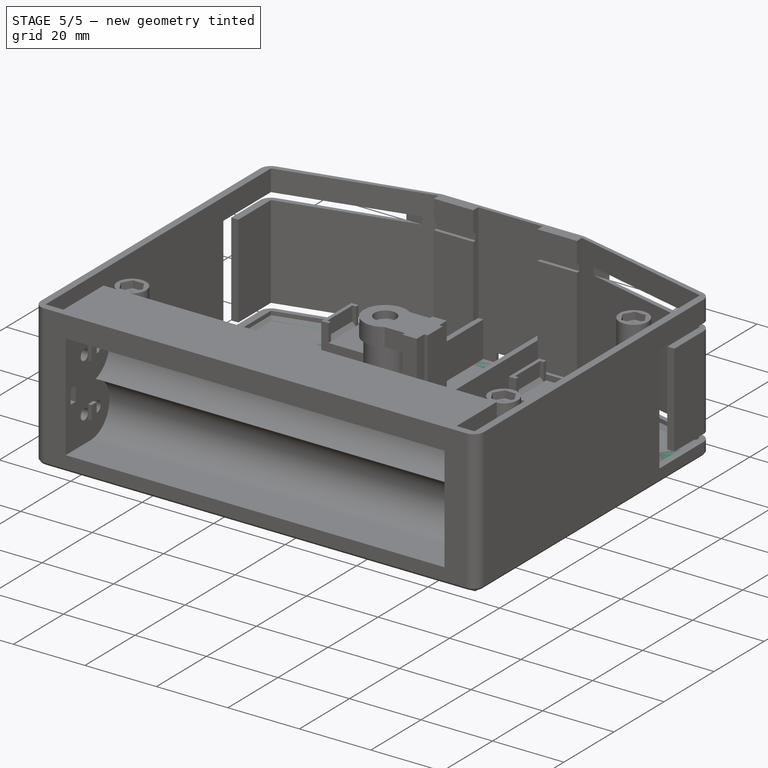
[diagram: stage 5 of 5 — iso view after this stage's code; geometry added in this stage tinted green]
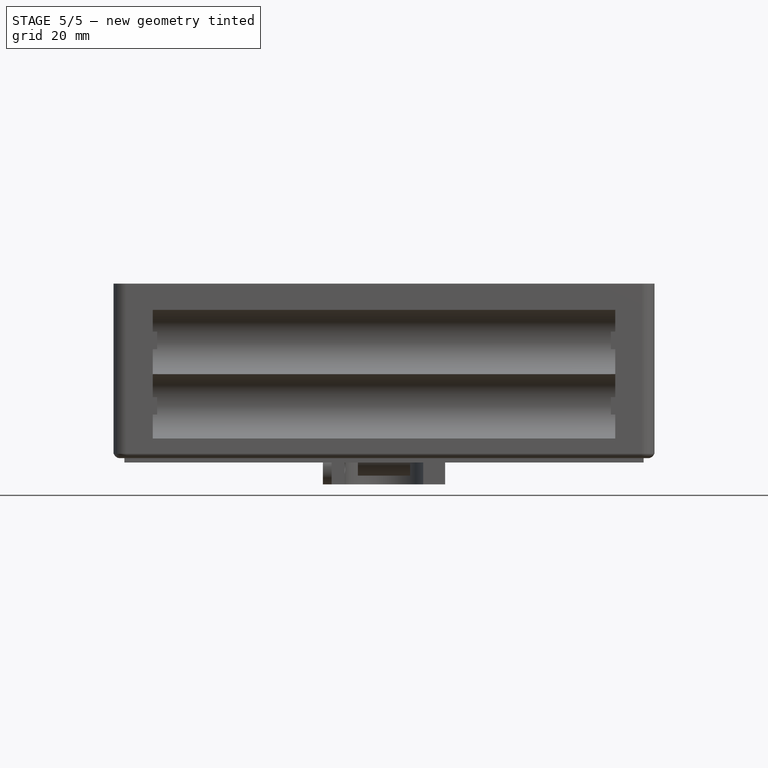
[diagram: stage 5 of 5 — front view after this stage's code; geometry added in this stage tinted green]
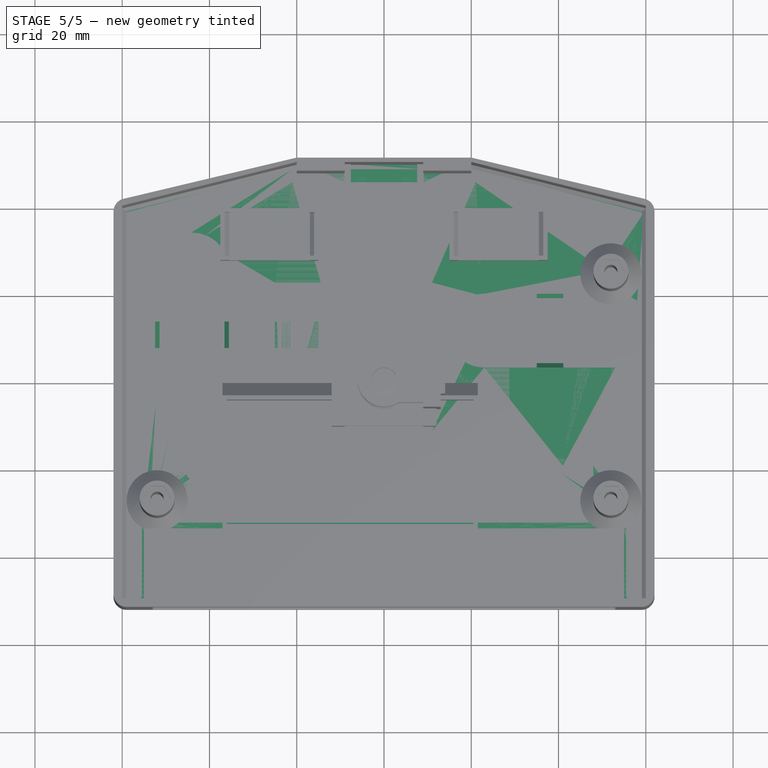
[diagram: stage 5 of 5 — top view after this stage's code; geometry added in this stage tinted green]
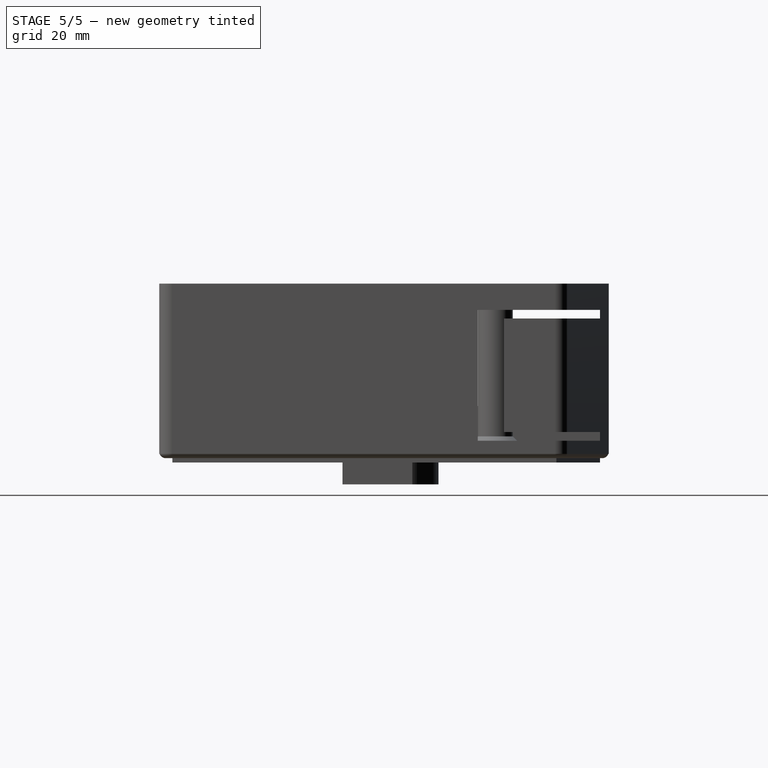
[diagram: stage 5 of 5 — right view after this stage's code; geometry added in this stage tinted green]
FEATURE [Sketcher::SketchObject] Sketch001  label="Pocket012"
  FullyConstrained = true
  MapMode = 5
  Support = -> [XY_Plane001]
  sketch-geometry (6):
    g0: LineSegment StartX=-20 StartY=51 StartZ=0 EndX=20 EndY=51 EndZ=0
    g1: LineSegment StartX=62 StartY=41 StartZ=0 EndX=62 EndY=-52 EndZ=0
    g2: LineSegment StartX=62 StartY=-52 StartZ=0 EndX=-62 EndY=-52 EndZ=0
    g3: LineSegment StartX=-62 StartY=-52 StartZ=0 EndX=-62 EndY=41 EndZ=0
    g4: LineSegment StartX=-62 StartY=41 StartZ=0 EndX=-20 EndY=51 EndZ=0
    g5: LineSegment StartX=20 StartY=51 StartZ=0 EndX=62 EndY=41 EndZ=0
  constraints (18):
    c: Coincident(g1,g2)
    c: Coincident(g2,g3)
    c: Horizontal(g0)
    c: Horizontal(g2)
    c: Vertical(g1)
    c: Vertical(g3)
    c: DistanceX(g2,g-1) = 62
    c: DistanceX(g2,g2) = 124
    c: Coincident(g0,g4)
    c: Coincident(g3,g4)
    c: Coincident(g1,g5)
    c: Coincident(g0,g5)
    c: DistanceY(g-1,g3) = 41
    c: DistanceY(g-1,g0) = 51
    c: DistanceX(g0,g0) = 40
    c: DistanceY(g-1,g1) = 41
    c: DistanceX(g0,g-1) = 20
    c: DistanceY(g2,g-1) = 52
FEATURE [Sketcher::SketchObject] Sketch016  label="Joystick"
  FullyConstrained = true
  MapMode = 5
  Support = -> [XY_Plane001]
  sketch-geometry (8):
    g0: ArcOfCircle CenterX=-44 CenterY=26 CenterZ=0 NormalX=0 NormalY=0 NormalZ=1 AngleXU=0 Radius=5.5 StartAngle=2.7e-15 EndAngle=3.14159
    g1: ArcOfCircle CenterX=-44 CenterY=-4 CenterZ=0 NormalX=0 NormalY=0 NormalZ=1 AngleXU=0 Radius=5.5 StartAngle=3.14159 EndAngle=6.28319
    g2: LineSegment StartX=-49.5 StartY=26 StartZ=0 EndX=-49.5 EndY=-4 EndZ=0
    g3: LineSegment StartX=-38.5 StartY=26 StartZ=0 EndX=-38.5 EndY=-4 EndZ=0
    g4: ArcOfCircle CenterX=23 CenterY=12 CenterZ=0 NormalX=0 NormalY=0 NormalZ=1 AngleXU=0 Radius=5.5 StartAngle=1.5708 EndAngle=4.71239
    g5: ArcOfCircle CenterX=53 CenterY=12 CenterZ=0 NormalX=0 NormalY=0 NormalZ=1 AngleXU=0 Radius=5.5 StartAngle=4.71239 EndAngle=7.85398
    g6: LineSegment StartX=23 StartY=6.5 StartZ=0 EndX=53 EndY=6.5 EndZ=0
    g7: LineSegment StartX=23 StartY=17.5 StartZ=0 EndX=53 EndY=17.5 EndZ=0
  constraints (20):
    c: Tangent(g0,g3) = 1.5708
    c: Tangent(g0,g2) = -1.5708
    c: Tangent(g2,g1) = -1.5708
    c: Tangent(g3,g1) = 1.5708
    c: Vertical(g2)
    c: Equal(g0,g1)
    c: Tangent(g4,g7) = 1.5708
    c: Tangent(g4,g6) = -1.5708
    c: Tangent(g6,g5) = -1.5708
    c: Tangent(g7,g5) = 1.5708
    c: Horizontal(g6)
    c: Equal(g4,g5)
    c: DistanceX(g1,g-1) = 44
    c: DistanceX(g4,g5) = 30
    c: DistanceY(g1,g0) = 30
    c: DistanceY(g1,g-1) = 4
    c: DistanceY(g-1,g4) = 12
    c: Radius(g0) = 5.5
    c: Radius(g5) = 5.5
    c: DistanceX(g-1,g4) = 23
FEATURE [Sketcher::SketchObject] Sketch017  label="SwitchHoles"
  FullyConstrained = true
  MapMode = 5
  Support = -> [XY_Plane001]
  sketch-geometry (6):
    g0: Circle CenterX=-43 CenterY=-20 CenterZ=0 NormalX=0 NormalY=0 NormalZ=1 AngleXU=0 Radius=2.5
    g1: Circle CenterX=0 CenterY=-20 CenterZ=0 NormalX=0 NormalY=0 NormalZ=1 AngleXU=0 Radius=2.5
    g2: LineSegment StartX=41 StartY=-19 StartZ=0 EndX=48 EndY=-19 EndZ=0
    g3: LineSegment StartX=48 StartY=-19 StartZ=0 EndX=48 EndY=-21 EndZ=0
    g4: LineSegment StartX=48 StartY=-21 StartZ=0 EndX=41 EndY=-21 EndZ=0
    g5: LineSegment StartX=41 StartY=-21 StartZ=0 EndX=41 EndY=-19 EndZ=0
  constraints (18):
    c: Radius(g0) = 2.5
    c: PointOnObject(g1,g-2)
    c: Radius(g1) = 2.5
    c: Coincident(g2,g3)
    c: Coincident(g3,g4)
    c: Coincident(g4,g5)
    c: Coincident(g5,g2)
    c: Horizontal(g2)
    c: Horizontal(g4)
    c: Vertical(g3)
    c: Vertical(g5)
    c: DistanceY(g0,g1) = 0
    c: DistanceY(g5,g5) = 2
    c: DistanceY(g1,g2) = 1
    c: DistanceX(g2,g2) = 7
    c: DistanceX(g1,g2) = 41
    c: DistanceY(g1,g-1) = 20
    c: DistanceX(g0,g1) = 43
FEATURE [Sketcher::SketchObject] Sketch018  label="LCD"
  FullyConstrained = true
  MapMode = 5
  Support = -> [XY_Plane001]
  sketch-geometry (4):
    g0: LineSegment StartX=-25 StartY=23 StartZ=0 EndX=11 EndY=23 EndZ=0
    g1: LineSegment StartX=11 StartY=23 StartZ=0 EndX=11 EndY=-11 EndZ=0
    g2: LineSegment StartX=11 StartY=-11 StartZ=0 EndX=-25 EndY=-11 EndZ=0
    g3: LineSegment StartX=-25 StartY=-11 StartZ=0 EndX=-25 EndY=23 EndZ=0
  constraints (12):
    c: Coincident(g0,g1)
    c: Coincident(g1,g2)
    c: Coincident(g2,g3)
    c: Coincident(g3,g0)
    c: Horizontal(g0)
    c: Horizontal(g2)
    c: Vertical(g1)
    c: Vertical(g3)
    c: DistanceX(g0,g0) = 36
    c: DistanceY(g3,g3) = 34
    c: DistanceY(g2,g-1) = 11
    c: DistanceX(g2,g-1) = 25
FEATURE [Sketcher::SketchObject] Sketch019  label="Pad008"
  FullyConstrained = true
  MapMode = 5
  Support = -> [XY_Plane001]
  sketch-geometry (16):
    g0: LineSegment StartX=59.5 StartY=39 StartZ=0 EndX=59.5 EndY=-49 EndZ=0
    g1: LineSegment StartX=59.5 StartY=-49 StartZ=0 EndX=55.5 EndY=-49 EndZ=0
    g2: LineSegment StartX=-59.5 StartY=-49 StartZ=0 EndX=-59.5 EndY=39 EndZ=0
    g3: LineSegment StartX=55.5 StartY=-49 StartZ=0 EndX=55.5 EndY=-32 EndZ=0
    g4: LineSegment StartX=55.5 StartY=-32 StartZ=0 EndX=-55.5 EndY=-32 EndZ=0
    g5: LineSegment StartX=-55.5 StartY=-32 StartZ=0 EndX=-55.5 EndY=-49 EndZ=0
    g6: LineSegment StartX=-59.5 StartY=39 StartZ=0 EndX=-21 EndY=49 EndZ=0
    g7: LineSegment StartX=21 StartY=49 StartZ=0 EndX=59.5 EndY=39 EndZ=0
    g8: LineSegment StartX=-21 StartY=49 StartZ=0 EndX=-21 EndY=46 EndZ=0
    g9: LineSegment StartX=-21 StartY=46 StartZ=0 EndX=-9 EndY=46 EndZ=0
    g10: LineSegment StartX=-9 StartY=46 StartZ=0 EndX=-9 EndY=49 EndZ=0
    g11: LineSegment StartX=21 StartY=49 StartZ=0 EndX=21 EndY=46 EndZ=0
    g12: LineSegment StartX=21 StartY=46 StartZ=0 EndX=9 EndY=46 EndZ=0
    g13: LineSegment StartX=9 StartY=46 StartZ=0 EndX=9 EndY=49 EndZ=0
    g14: LineSegment StartX=-9 StartY=49 StartZ=0 EndX=9 EndY=49 EndZ=0
    g15: LineSegment StartX=-55.5 StartY=-49 StartZ=0 EndX=-59.5 EndY=-49 EndZ=0
  constraints (47):
    c: Coincident(g0,g1)
    c: Coincident(g15,g2)
    c: Horizontal(g1)
    c: Vertical(g0)
    c: Vertical(g2)
    c: Coincident(g3,g4)
    c: Coincident(g4,g5)
    c: Horizontal(g4)
    c: Vertical(g3)
    c: Vertical(g5)
    c: Coincident(g8,g6)
    c: Coincident(g8,g9)
    c: Horizontal(g9)
    c: Coincident(g9,g10)
    c: Vertical(g10)
    c: Coincident(g7,g11)
    c: Vertical(g11)
    c: Coincident(g11,g12)
    c: Horizontal(g12)
    c: Coincident(g12,g13)
    c: Vertical(g13)
    c: Coincident(g14,g10)
    c: Coincident(g0,g7)
    c: Coincident(g15,g5)
    c: Tangent(g1,g15)
    c: Coincident(g3,g1)
    c: Coincident(g2,g6)
    c: DistanceX(g2,g0) = 119
    c: DistanceX(g2,g-1) = 59.5
    c: DistanceY(g-1,g2) = 39
    c: DistanceY(g0,g2) = 0
    c: DistanceY(g2,g-1) = 49
    c: DistanceY(g5,g5) = 17
    c: DistanceX(g4,g4) = 111
    c: DistanceX(g4,g-1) = 55.5
    c: Vertical(g8)
    c: DistanceY(g6,g7) = 0
    c: DistanceY(g12,g9) = 0
    c: DistanceY(g8,g8) = 3
    c: DistanceY(g10,g6) = 0
    c: Horizontal(g14)
    c: Coincident(g13,g14)
    c: DistanceY(g-1,g10) = 49
    c: DistanceX(g8,g-1) = 21
    c: DistanceX(g-1,g11) = 21
    c: DistanceX(g9,g9) = 12
    c: DistanceX(g12,g12) = 12
FEATURE [Sketcher::SketchObject] Sketch020  label="BoltHole"
  FullyConstrained = true
  MapMode = 5
  Support = -> [XY_Plane001]
  sketch-geometry (3):
    g0: Circle CenterX=-52 CenterY=-27 CenterZ=0 NormalX=0 NormalY=0 NormalZ=1 AngleXU=0 Radius=1.6
    g1: Circle CenterX=52 CenterY=-27 CenterZ=0 NormalX=0 NormalY=0 NormalZ=1 AngleXU=0 Radius=1.6
    g2: Circle CenterX=52 CenterY=25 CenterZ=0 NormalX=0 NormalY=0 NormalZ=1 AngleXU=0 Radius=1.6
  constraints (9):
    c: Radius(g0) = 1.6
    c: Radius(g1) = 1.6
    c: Radius(g2) = 1.6
    c: DistanceY(g1,g0) = 0
    c: DistanceX(g2,g1) = 0
    c: DistanceX(g0,g-1) = 52
    c: DistanceX(g-1,g1) = 52
    c: DistanceY(g0,g-1) = 27
    c: DistanceY(g-1,g2) = 25
FEATURE [Sketcher::SketchObject] Sketch021  label="LED_Hole"
  FullyConstrained = true
  MapMode = 5
  Support = -> [XY_Plane001]
  sketch-geometry (8):
    g0: LineSegment StartX=-14.5 StartY=23 StartZ=0 EndX=0.5 EndY=23 EndZ=0
    g1: LineSegment StartX=0.5 StartY=23 StartZ=0 EndX=0.5 EndY=19 EndZ=0
    g2: LineSegment StartX=0.5 StartY=19 StartZ=0 EndX=-14.5 EndY=19 EndZ=0
    g3: LineSegment StartX=-14.5 StartY=19 StartZ=0 EndX=-14.5 EndY=23 EndZ=0
    g4: Circle CenterX=-22 CenterY=20 CenterZ=0 NormalX=0 NormalY=0 NormalZ=1 AngleXU=0 Radius=1.6
    g5: Circle CenterX=8.5 CenterY=20 CenterZ=0 NormalX=0 NormalY=0 NormalZ=1 AngleXU=0 Radius=1.6
    g6: Circle CenterX=8.5 CenterY=-8 CenterZ=0 NormalX=0 NormalY=0 NormalZ=1 AngleXU=0 Radius=1.6
    g7: Circle CenterX=-22 CenterY=-8 CenterZ=0 NormalX=0 NormalY=0 NormalZ=1 AngleXU=0 Radius=1.6
  constraints (24):
    c: Coincident(g0,g1)
    c: Coincident(g1,g2)
    c: Coincident(g2,g3)
    c: Coincident(g3,g0)
    c: Horizontal(g0)
    c: Horizontal(g2)
    c: Vertical(g1)
    c: Vertical(g3)
    c: DistanceX(g7,g4) = 0
    c: DistanceX(g5,g6) = 0
    c: DistanceY(g4,g5) = 0
    c: DistanceY(g7,g6) = 0
    c: Radius(g5) = 1.6
    c: Radius(g6) = 1.6
    c: Radius(g4) = 1.6
    c: Radius(g7) = 1.6
    c: DistanceX(g4,g5) = 30.5
    c: DistanceY(g7,g4) = 28
    c: DistanceX(g4,g-1) = 22
    c: DistanceY(g-1,g4) = 20
    c: DistanceX(g0,g0) = 15
    c: DistanceY(g1,g1) = 4
    c: DistanceY(g-1,g1) = 19
    c: DistanceX(g2,g-1) = 14.5
FEATURE [PartDesign::Pad] Pad008  label="Pad009"
  Direction = (1,1,1)
  Length = 3
  Length2 = 100
  Profile = -> Sketch019
  Reversed = true
  Type = 0
FEATURE [PartDesign::Pad] Pad007
  BaseFeature = -> Pad008
  Direction = (1,1,1)
  Length = 1
  Length2 = 100
  Profile = -> Sketch001
  Reversed = true
  Type = 0
FEATURE [PartDesign::Pocket] Pocket009
  BaseFeature = -> Pad007
  Length = 5
  Length2 = 100
  Profile = -> Sketch016
  Type = 0
FEATURE [PartDesign::Pocket] Pocket008
  BaseFeature = -> Pocket009
  Length = 5
  Length2 = 100
  Profile = -> Sketch017
  Type = 0
FEATURE [PartDesign::Pocket] Pocket011
  BaseFeature = -> Pocket008
  Length = 5
  Length2 = 100
  Profile = -> Sketch020
  Type = 0
FEATURE [PartDesign::Pocket] Pocket012  label="Pocket013"
  BaseFeature = -> Pocket011
  Length = 1
  Length2 = 100
  Profile = -> Sketch018
  Type = 0
FEATURE [PartDesign::Pocket] Pocket010
  BaseFeature = -> Pocket012
  Length = 5
  Length2 = 100
  Profile = -> Sketch021
  Type = 0
FEATURE [PartDesign::Chamfer] Chamfer
  Angle = 45
  Base = -> Pocket010 [Edge37,Edge25]
  BaseFeature = -> Pocket010
  ChamferType = 0
  FlipDirection = false
  Size = 2.95
  Size2 = 1
  SupportTransform = false
FEATURE [PartDesign::Fillet] Fillet001
  Base = -> Chamfer [Edge102,Edge106,Edge108,Edge104,Edge100,Edge99]
  BaseFeature = -> Chamfer
  Radius = 3
  SupportTransform = false
FEATURE [Sketcher::SketchObject] Sketch029  label="Hexagon"
  AttachmentOffset = pos=(0,-4,-14) rot=(0,0,1;0rad)
  FullyConstrained = true
  MapMode = 5
  Placement = pos=(-14,2.2e-15,-4) rot=(0.57735,0.57735,0.57735;2.0944rad)
  Support = -> [YZ_Plane002]
  sketch-geometry (7):
    g0: LineSegment StartX=3.2 StartY=0 StartZ=0 EndX=1.6 EndY=2.77128 EndZ=0
    g1: LineSegment StartX=1.6 StartY=2.77128 StartZ=0 EndX=-1.6 EndY=2.77128 EndZ=0
    g2: LineSegment StartX=-1.6 StartY=2.77128 StartZ=0 EndX=-3.2 EndY=-6.8754e-12 EndZ=0
    g3: LineSegment StartX=-3.2 StartY=-6.8755e-12 StartZ=0 EndX=-1.6 EndY=-2.77128 EndZ=0
    g4: LineSegment StartX=-1.6 StartY=-2.77128 StartZ=0 EndX=1.6 EndY=-2.77128 EndZ=0
    g5: LineSegment StartX=1.6 StartY=-2.77128 StartZ=0 EndX=3.2 EndY=0 EndZ=0
    g6: Circle CenterX=0 CenterY=0 CenterZ=0 NormalX=0 NormalY=0 NormalZ=1 AngleXU=0 Radius=3.2
  constraints (16):
    c: Coincident(g0,g1)
    c: Coincident(g1,g2)
    c: Coincident(g2,g3)
    c: Coincident(g3,g4)
    c: Coincident(g4,g5)
    c: Coincident(g5,g0)
    c: Equal(g0, g1-g5) x5
    c: PointOnObject(g0,g6)
    c: PointOnObject(g1,g6)
    c: PointOnObject(g2,g6)
    c: PointOnObject(g3,g6)
    c: PointOnObject(g4,g6)
    c: PointOnObject(g5,g6)
    c: Coincident(g6,g-1)
    c: PointOnObject(g5,g-1)
    c: Radius(g6) = 3.2
FEATURE [PartDesign::Pocket] Pocket013  label="Pocket014"
  BaseFeature = -> Pad012
  Length = 1.5
  Length2 = 100
  Profile = -> Sketch029
  Reversed = true
  Type = 0
FEATURE [Sketcher::SketchObject] Sketch030  label="CirclePocket"
  AttachmentOffset = pos=(0,-4,0) rot=(0,0,1;0rad)
  FullyConstrained = true
  MapMode = 5
  Placement = pos=(9e-16,-9e-16,-4) rot=(0.57735,0.57735,0.57735;2.0944rad)
  Support = -> [YZ_Plane002]
  sketch-geometry (1):
    g0: Circle CenterX=0 CenterY=0 CenterZ=0 NormalX=0 NormalY=0 NormalZ=1 AngleXU=0 Radius=1.6
  constraints (2):
    c: Coincident(g0,g-1)
    c: Radius(g0) = 1.6
FEATURE [PartDesign::Pocket] Pocket014  label="Pocket015"
  BaseFeature = -> Pocket013
  Length = 50
  Length2 = 100
  Profile = -> Sketch030
  Type = 0
FEATURE [PartDesign::Pocket] Pocket016  label="Pocket017"
  BaseFeature = -> Pocket014
  Length = 16
  Length2 = 100
  Profile = -> Sketch023
  Reversed = true
  Type = 0
FEATURE [Sketcher::SketchObject] Sketch031  label="OtherCircle"
  AttachmentOffset = pos=(0,0,32) rot=(0,0,1;0rad)
  FullyConstrained = true
  MapMode = 5
  Placement = pos=(0,0,32) rot=(0,0,1;0rad)
  Support = -> [XY_Plane002]
  sketch-geometry (1):
    g0: Circle CenterX=0 CenterY=0 CenterZ=0 NormalX=0 NormalY=0 NormalZ=1 AngleXU=0 Radius=6
  constraints (2):
    c: Coincident(g0,g-1)
    c: Radius(g0) = 6
FEATURE [Sketcher::SketchObject] Sketch032  label="OtherPillar"
  AttachmentOffset = pos=(0,0,32) rot=(0,0,1;0rad)
  FullyConstrained = true
  MapMode = 5
  Placement = pos=(0,0,32) rot=(0,0,1;0rad)
  Support = -> [XY_Plane002]
  sketch-geometry (4):
    g0: LineSegment StartX=0 StartY=5 StartZ=0 EndX=13 EndY=5 EndZ=0
    g1: LineSegment StartX=13 StartY=5 StartZ=0 EndX=13 EndY=-5 EndZ=0
    g2: LineSegment StartX=13 StartY=-5 StartZ=0 EndX=0 EndY=-5 EndZ=0
    g3: LineSegment StartX=0 StartY=-5 StartZ=0 EndX=0 EndY=5 EndZ=0
  constraints (12):
    c: Coincident(g0,g1)
    c: Coincident(g1,g2)
    c: Coincident(g2,g3)
    c: Coincident(g3,g0)
    c: Horizontal(g0)
    c: Horizontal(g2)
    c: Vertical(g1)
    c: Vertical(g3)
    c: PointOnObject(g0,g-2)
    c: DistanceY(g-1,g0) = 5
    c: DistanceY(g1,g1) = 10
    c: DistanceX(g-1,g0) = 13
FEATURE [PartDesign::Pad] Pad009  label="Pad010"
  BaseFeature = -> Pocket016
  Direction = (1,1,1)
  Length = 5
  Length2 = 100
  Profile = -> Sketch032
  Reversed = true
  Type = 0
FEATURE [PartDesign::Pad] Pad010  label="Pad011"
  BaseFeature = -> Pad009
  Direction = (1,1,1)
  Length = 5
  Length2 = 100
  Profile = -> Sketch031
  Reversed = true
  Type = 0
FEATURE [Sketcher::SketchObject] Sketch033  label="OtherCirclePocket"
  AttachmentOffset = pos=(0,0,35) rot=(0,0,1;0rad)
  FullyConstrained = true
  MapMode = 5
  Placement = pos=(0,0,35) rot=(0,0,1;0rad)
  Support = -> [XY_Plane002]
  sketch-geometry (1):
    g0: Circle CenterX=0 CenterY=0 CenterZ=0 NormalX=0 NormalY=0 NormalZ=1 AngleXU=0 Radius=3
  constraints (2):
    c: Coincident(g0,g-1)
    c: Radius(g0) = 3
FEATURE [PartDesign::Pocket] Pocket017  label="Pocket018"
  BaseFeature = -> Pad010
  Length = 10
  Length2 = 100
  Profile = -> Sketch033
  Type = 0
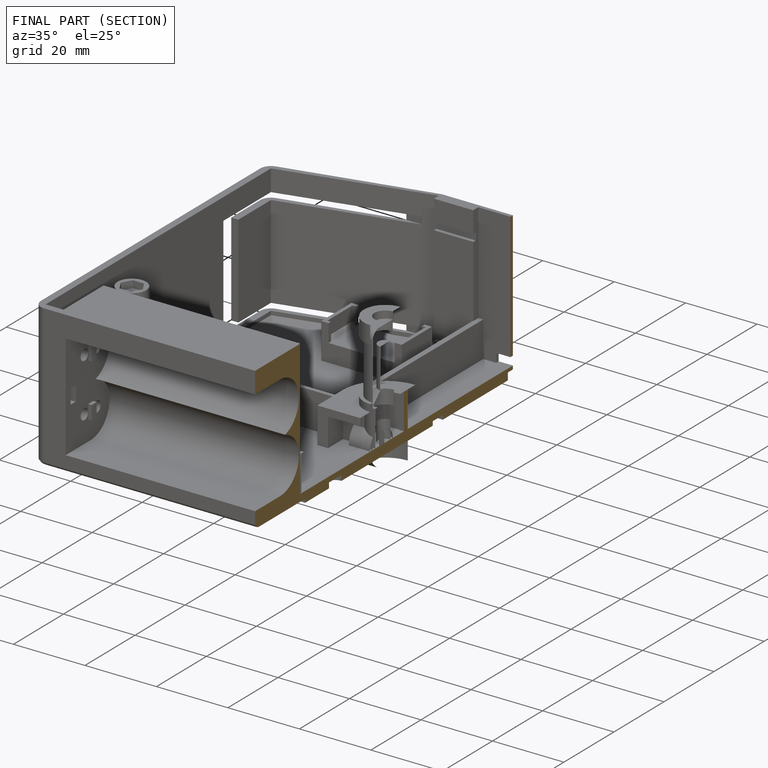
[diagram: finished part — half-section view (interior)]
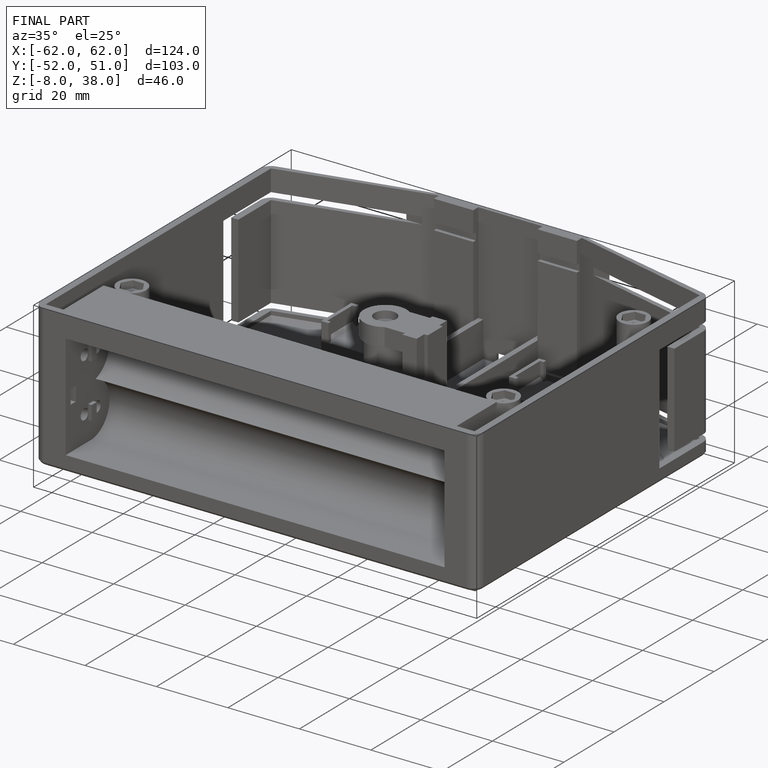
[diagram: finished part — iso view with bounding-box wireframe]
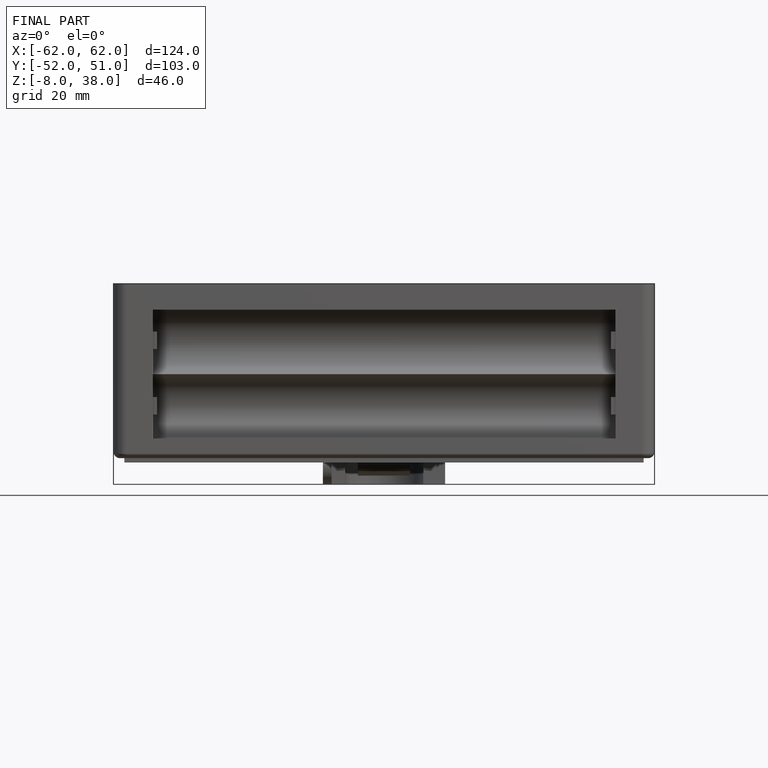
[diagram: finished part — front view with bounding-box wireframe]
